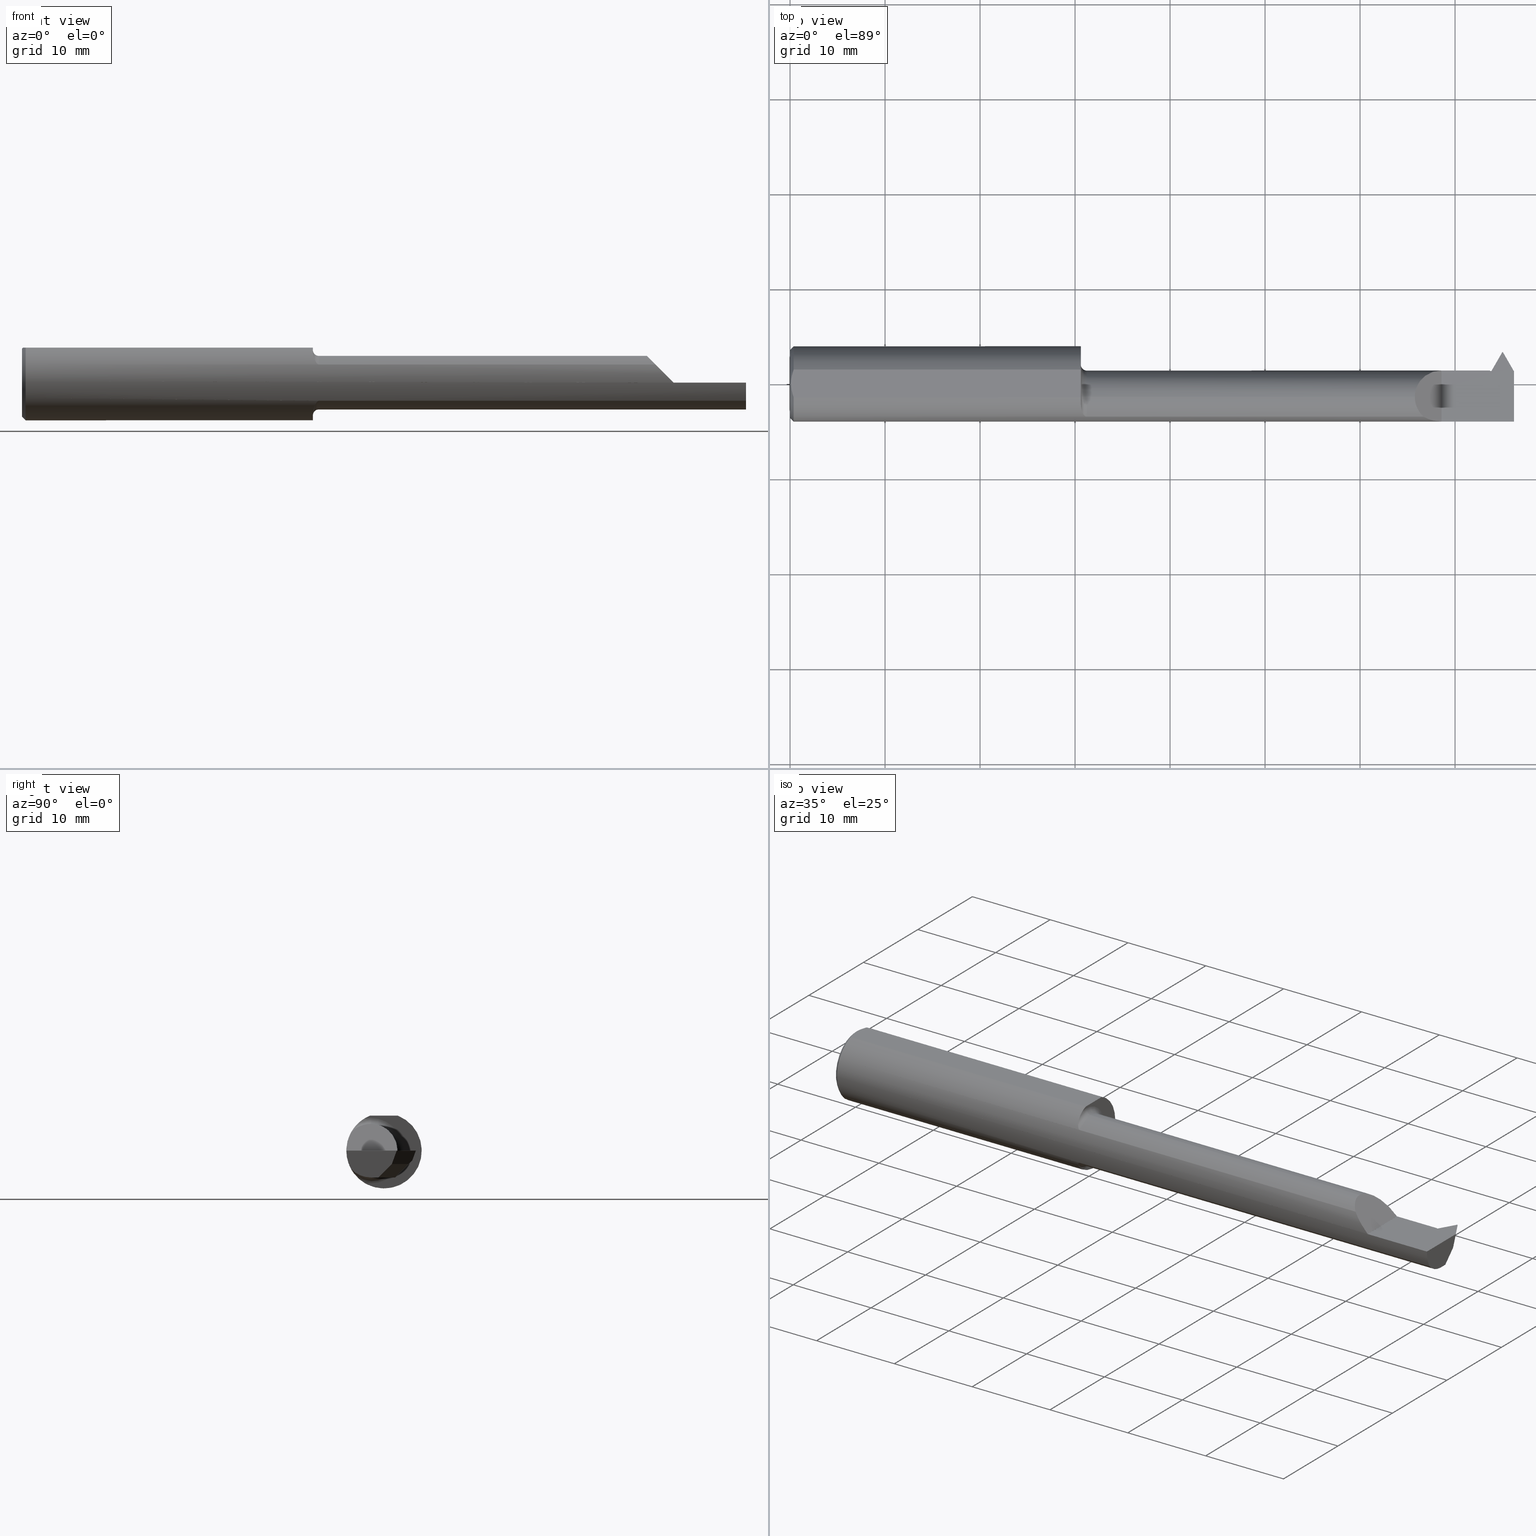
[diagram: canonical four-view strip — front | top / right | iso, engineering-drawing reading convention]
A machine part, canonical four-view strip (front | top / right | iso — engineering-drawing reading convention). The complete STEP part file that produces these views, byte-faithful:
ISO-10303-21;
HEADER;
FILE_DESCRIPTION (( 'STEP AP203' ),
    '1' );
FILE_NAME ('230322-TT2901750.STEP',
    '2025-04-22T23:06:50',
    ( '' ),
    ( '' ),
    'SwSTEP 2.0',
    'SolidWorks 2024',
    '' );
FILE_SCHEMA (( 'CONFIG_CONTROL_DESIGN' ));
ENDSEC;

DATA;
#1 = VECTOR ( 'NONE', #277, 39.37007874015748143 ) ;
#2 = CARTESIAN_POINT ( 'NONE',  ( 0.005030132703187127977, 0.01970541148932071149, 0.1450999999999999512 ) ) ;
#3 = VECTOR ( 'NONE', #340, 39.37007874015748143 ) ;
#4 = ORIENTED_EDGE ( 'NONE', *, *, #378, .F. ) ;
#5 = SECURITY_CLASSIFICATION_LEVEL ( 'unclassified' ) ;
#6 = ADVANCED_FACE ( 'NONE', ( #927 ), #420, .F. ) ;
#7 = CARTESIAN_POINT ( 'NONE',  ( 2.951499120090566475, 0.06347222395681030582, -0.1880037695421790667 ) ) ;
#8 = CARTESIAN_POINT ( 'NONE',  ( 0.004000000000002368848, 1.884449684559922719E-17, 0.1450999999999999512 ) ) ;
#9 = ORIENTED_EDGE ( 'NONE', *, *, #690, .T. ) ;
#10 = ORIENTED_EDGE ( 'NONE', *, *, #154, .T. ) ;
#11 = CARTESIAN_POINT ( 'NONE',  ( 2.635024168887416529, 0.05584141814640498219, 0.06507583111258367914 ) ) ;
#12 = DIRECTION ( 'NONE',  ( 0.000000000000000000, 0.000000000000000000, 1.000000000000000000 ) ) ;
#13 = VERTEX_POINT ( 'NONE', #409 ) ;
#14 = ORIENTED_EDGE ( 'NONE', *, *, #919, .F. ) ;
#15 = DIRECTION ( 'NONE',  ( 0.5000000000000057732, 0.000000000000000000, -0.8660254037844351549 ) ) ;
#16 = MANIFOLD_SOLID_BREP ( 'Cut-Sweep1', #162 ) ;
#17 = DIRECTION ( 'NONE',  ( 0.000000000000000000, 0.000000000000000000, 1.000000000000000000 ) ) ;
#18 = ORIENTED_EDGE ( 'NONE', *, *, #346, .F. ) ;
#19 = AXIS2_PLACEMENT_3D ( 'NONE', #233, #695, #447 ) ;
#20 = VERTEX_POINT ( 'NONE', #574 ) ;
#21 = EDGE_CURVE ( 'NONE', #589, #288, #772, .T. ) ;
#22 = CIRCLE ( 'NONE', #506, 0.1560999999999999888 ) ;
#23 = PRODUCT ( '230322-TT2901750', '230322-TT2901750', '', ( #498 ) ) ;
#24 = CARTESIAN_POINT ( 'NONE',  ( 0.01500000000000298143, 0.000000000000000000, 0.000000000000000000 ) ) ;
#25 = DIRECTION ( 'NONE',  ( 0.1779435454738421407, 0.000000000000000000, 0.9840406976462907629 ) ) ;
#26 = ORIENTED_EDGE ( 'NONE', *, *, #346, .T. ) ;
#27 = EDGE_LOOP ( 'NONE', ( #448, #812, #361, #849, #398, #468, #95, #322, #819 ) ) ;
#28 = ADVANCED_FACE ( 'NONE', ( #644 ), #273, .F. ) ;
#29 = CARTESIAN_POINT ( 'NONE',  ( 0.01500000000000243500, 0.000000000000000000, 0.000000000000000000 ) ) ;
#30 = LINE ( 'NONE', #708, #3 ) ;
#31 = ORIENTED_EDGE ( 'NONE', *, *, #842, .T. ) ;
#32 = CARTESIAN_POINT ( 'NONE',  ( 1.230000000000000426, -0.05509999999999999620, 0.000000000000000000 ) ) ;
#33 = CARTESIAN_POINT ( 'NONE',  ( 2.700000000000000178, 0.1749999999999999889, -3.979970649922725226E-17 ) ) ;
#34 = EDGE_CURVE ( 'NONE', #797, #83, #266, .T. ) ;
#35 = CARTESIAN_POINT ( 'NONE',  ( 2.912458785480009915, 0.006850319785407740260, -0.09210406005429772058 ) ) ;
#36 = LINE ( 'NONE', #773, #617 ) ;
#37 = VECTOR ( 'NONE', #344, 39.37007874015748854 ) ;
#38 = LINE ( 'NONE', #775, #803 ) ;
#39 = ADVANCED_FACE ( 'NONE', ( #278 ), #205, .T. ) ;
#40 = CARTESIAN_POINT ( 'NONE',  ( 2.954500701057454659, 0.06352100603404341184, -0.1878697418865070967 ) ) ;
#41 = DIRECTION ( 'NONE',  ( 5.463695987328525648E-15, -1.000000000000000000, -0.000000000000000000 ) ) ;
#42 = CARTESIAN_POINT ( 'NONE',  ( 2.625027139386173491, -0.1368622504537206908, 0.07507286061382660580 ) ) ;
#43 = DIRECTION ( 'NONE',  ( 0.000000000000000000, -3.537866208011151427E-15, 1.000000000000000000 ) ) ;
#44 = CARTESIAN_POINT ( 'NONE',  ( 1.205000000000000293, -0.08722028877555598747, 0.1296752301274216035 ) ) ;
#45 = CALENDAR_DATE ( 2025, 22, 4 ) ;
#46 = CARTESIAN_POINT ( 'NONE',  ( 3.000000000000000444, -0.1560999999999999333, -3.979970649922725226E-17 ) ) ;
#47 = CARTESIAN_POINT ( 'NONE',  ( 1.217545102296320625, -0.1302115092214859715, 0.08616258549502014974 ) ) ;
#48 = ADVANCED_FACE ( 'NONE', ( #788 ), #850, .F. ) ;
#49 = CIRCLE ( 'NONE', #789, 0.02499999999999999098 ) ;
#50 = CIRCLE ( 'NONE', #601, 0.1360000000000000098 ) ;
#51 = CC_DESIGN_SECURITY_CLASSIFICATION ( #931, ( #494 ) ) ;
#52 = DIRECTION ( 'NONE',  ( -4.900947565224817998E-15, 0.7071067811865432429, 0.7071067811865516806 ) ) ;
#53 = CARTESIAN_POINT ( 'NONE',  ( 2.900999999999999801, 0.05390000000000002428, 0.000000000000000000 ) ) ;
#54 = EDGE_CURVE ( 'NONE', #429, #898, #331, .T. ) ;
#55 = COORDINATED_UNIVERSAL_TIME_OFFSET ( 8, 0, .BEHIND. ) ;
#56 = CARTESIAN_POINT ( 'NONE',  ( 1.230000000000000426, -0.1368622504537204410, -0.07507286061382698050 ) ) ;
#57 = DIRECTION ( 'NONE',  ( -0.01827811026638726313, 0.9998329413882549588, -7.351876135867690758E-15 ) ) ;
#58 = ORIENTED_EDGE ( 'NONE', *, *, #341, .F. ) ;
#59 = EDGE_CURVE ( 'NONE', #383, #552, #36, .T. ) ;
#60 = CARTESIAN_POINT ( 'NONE',  ( 2.589100000000000623, -0.08664595039291338174, 0.1110000000000000014 ) ) ;
#61 = CARTESIAN_POINT ( 'NONE',  ( 1.205000000000000293, -0.05509999999999999620, 0.000000000000000000 ) ) ;
#62 = ORIENTED_EDGE ( 'NONE', *, *, #602, .F. ) ;
#63 = AXIS2_PLACEMENT_3D ( 'NONE', #711, #766, #926 ) ;
#64 = FACE_OUTER_BOUND ( 'NONE', #246, .T. ) ;
#65 = AXIS2_PLACEMENT_3D ( 'NONE', #215, #143, #127 ) ;
#66 = EDGE_CURVE ( 'NONE', #397, #316, #565, .T. ) ;
#67 = DIRECTION ( 'NONE',  ( -0.000000000000000000, 1.000000000000000000, -7.353467429283449659E-15 ) ) ;
#68 = ORIENTED_EDGE ( 'NONE', *, *, #436, .F. ) ;
#69 = PLANE ( 'NONE',  #492 ) ;
#70 = CARTESIAN_POINT ( 'NONE',  ( 2.916945011551437705, 0.1082368857768036957, -0.1110000000000011672 ) ) ;
#71 = ORIENTED_EDGE ( 'NONE', *, *, #939, .F. ) ;
#72 = DATE_AND_TIME ( #742, #765 ) ;
#73 = CARTESIAN_POINT ( 'NONE',  ( 3.000000000000000444, -0.1368622504537203854, -0.07507286061382703601 ) ) ;
#74 = DIRECTION ( 'NONE',  ( -1.000000000000000000, 0.000000000000000000, 0.000000000000000000 ) ) ;
#75 = VERTEX_POINT ( 'NONE', #777 ) ;
#76 = ORIENTED_EDGE ( 'NONE', *, *, #168, .T. ) ;
#77 = PERSON_AND_ORGANIZATION_ROLE ( 'design_supplier' ) ;
#78 = ADVANCED_FACE ( 'NONE', ( #709 ), #128, .T. ) ;
#79 =( BOUNDED_CURVE ( )  B_SPLINE_CURVE ( 3, ( #953, #683, #450, #80 ),
 .UNSPECIFIED., .F., .T. ) 
 B_SPLINE_CURVE_WITH_KNOTS ( ( 4, 4 ),
 ( 1.131590070290657835, 1.570796326794866804 ),
 .UNSPECIFIED. ) 
 CURVE ( )  GEOMETRIC_REPRESENTATION_ITEM ( )  RATIONAL_B_SPLINE_CURVE ( ( 1.000000000000000000, 0.9839893210965718895, 0.9839893210965718895, 1.000000000000000000 ) ) 
 REPRESENTATION_ITEM ( '' )  );
#80 = CARTESIAN_POINT ( 'NONE',  ( 2.900999999999999801, 0.05590000000000001218, 0.000000000000000000 ) ) ;
#81 = CIRCLE ( 'NONE', #730, 0.02499999999999999098 ) ;
#82 = PLANE ( 'NONE',  #289 ) ;
#83 = VERTEX_POINT ( 'NONE', #53 ) ;
#84 = ORIENTED_EDGE ( 'NONE', *, *, #168, .F. ) ;
#85 = SHAPE_DEFINITION_REPRESENTATION ( #827, #814 ) ;
#86 = CARTESIAN_POINT ( 'NONE',  ( 2.700000000000000178, 0.05589995495494585326, 9.999999999974760253E-05 ) ) ;
#87 = CARTESIAN_POINT ( 'NONE',  ( 3.000000000000000444, 0.05265867555372680253, 0.000000000000000000 ) ) ;
#88 = VERTEX_POINT ( 'NONE', #581 ) ;
#89 =( BOUNDED_CURVE ( )  B_SPLINE_CURVE ( 3, ( #630, #329, #912, #35 ),
 .UNSPECIFIED., .F., .T. ) 
 B_SPLINE_CURVE_WITH_KNOTS ( ( 4, 4 ),
 ( 2.948301984786027674, 3.334883322393558114 ),
 .UNSPECIFIED. ) 
 CURVE ( )  GEOMETRIC_REPRESENTATION_ITEM ( )  RATIONAL_B_SPLINE_CURVE ( ( 1.000000000000000000, 0.9875849649017660603, 0.9875849649017660603, 1.000000000000000000 ) ) 
 REPRESENTATION_ITEM ( '' )  );
#90 = ORIENTED_EDGE ( 'NONE', *, *, #924, .T. ) ;
#91 = PLANE ( 'NONE',  #557 ) ;
#92 = ADVANCED_FACE ( 'NONE', ( #796 ), #208, .T. ) ;
#93 = DIRECTION ( 'NONE',  ( 0.000000000000000000, 0.000000000000000000, -1.000000000000000000 ) ) ;
#94 = ORIENTED_EDGE ( 'NONE', *, *, #301, .F. ) ;
#95 = ORIENTED_EDGE ( 'NONE', *, *, #129, .F. ) ;
#96 = CALENDAR_DATE ( 2025, 22, 4 ) ;
#97 = CARTESIAN_POINT ( 'NONE',  ( 2.942414596679995942, 0.07650827955773054079, -0.1110000000000009451 ) ) ;
#98 = CARTESIAN_POINT ( 'NONE',  ( 2.912458785480009915, 0.04395437983970542500, -0.05500000000000004191 ) ) ;
#99 = VERTEX_POINT ( 'NONE', #144 ) ;
#100 = EDGE_CURVE ( 'NONE', #429, #391, #874, .T. ) ;
#101 = VECTOR ( 'NONE', #855, 39.37007874015748854 ) ;
#102 = ORIENTED_EDGE ( 'NONE', *, *, #616, .T. ) ;
#103 = CIRCLE ( 'NONE', #227, 0.1560999999999999888 ) ;
#104 = DIRECTION ( 'NONE',  ( -1.000000000000000000, 0.000000000000000000, 0.000000000000000000 ) ) ;
#105 = DIRECTION ( 'NONE',  ( -0.000000000000000000, 1.000000000000000000, -0.000000000000000000 ) ) ;
#106 = EDGE_LOOP ( 'NONE', ( #900, #543 ) ) ;
#107 = ORIENTED_EDGE ( 'NONE', *, *, #661, .T. ) ;
#108 = APPROVAL_ROLE ( '' ) ;
#109 = ADVANCED_FACE ( 'NONE', ( #505 ), #538, .F. ) ;
#110 = DIRECTION ( 'NONE',  ( -1.000000000000000000, -0.000000000000000000, -0.000000000000000000 ) ) ;
#111 = LINE ( 'NONE', #335, #101 ) ;
#112 = ORIENTED_EDGE ( 'NONE', *, *, #483, .T. ) ;
#113 = ORIENTED_EDGE ( 'NONE', *, *, #616, .F. ) ;
#114 = PRODUCT_DEFINITION ( 'UNKNOWN', '', #494, #624 ) ;
#115 = FACE_OUTER_BOUND ( 'NONE', #307, .T. ) ;
#116 = CARTESIAN_POINT ( 'NONE',  ( 2.900000000000000355, 0.1173411906293560097, -0.04000000000000000083 ) ) ;
#117 = CARTESIAN_POINT ( 'NONE',  ( 2.906716679003206405, 0.05390000000000003122, 0.000000000000000000 ) ) ;
#118 = VECTOR ( 'NONE', #802, 39.37007874015748143 ) ;
#119 = AXIS2_PLACEMENT_3D ( 'NONE', #33, #917, #104 ) ;
#120 = CARTESIAN_POINT ( 'NONE',  ( 2.700000000000000178, -0.1560999679692471886, 9.999999999974760253E-05 ) ) ;
#121 = CARTESIAN_POINT ( 'NONE',  ( 2.951749999999999652, 0.1319000000000034867, -3.979970649922725226E-17 ) ) ;
#122 = DIRECTION ( 'NONE',  ( 0.5000000000000034417, 0.8660254037844365982, 0.000000000000000000 ) ) ;
#123 = DIRECTION ( 'NONE',  ( 0.000000000000000000, 0.000000000000000000, -1.000000000000000000 ) ) ;
#124 = CARTESIAN_POINT ( 'NONE',  ( 0.01500000000000247836, -0.05756040305626795861, 0.1450999999999999512 ) ) ;
#125 = ADVANCED_FACE ( 'NONE', ( #525 ), #292, .F. ) ;
#126 = ORIENTED_EDGE ( 'NONE', *, *, #862, .F. ) ;
#127 = DIRECTION ( 'NONE',  ( 0.4999999999999966693, 0.000000000000000000, 0.8660254037844405950 ) ) ;
#128 = CYLINDRICAL_SURFACE ( 'NONE', #719, 0.1110000000000000014 ) ;
#129 = EDGE_CURVE ( 'NONE', #548, #797, #295, .T. ) ;
#130 = VECTOR ( 'NONE', #287, 39.37007874015748854 ) ;
#131 = VECTOR ( 'NONE', #957, 39.37007874015748143 ) ;
#132 =( NAMED_UNIT ( * ) PLANE_ANGLE_UNIT ( ) SI_UNIT ( $, .RADIAN. ) );
#133 = DIRECTION ( 'NONE',  ( -0.7071067811865462405, 0.000000000000000000, 0.7071067811865486830 ) ) ;
#134 = DIRECTION ( 'NONE',  ( 0.000000000000000000, 0.000000000000000000, -1.000000000000000000 ) ) ;
#135 = EDGE_LOOP ( 'NONE', ( #475, #761, #293 ) ) ;
#136 = ORIENTED_EDGE ( 'NONE', *, *, #280, .F. ) ;
#137 = EDGE_CURVE ( 'NONE', #829, #316, #438, .T. ) ;
#138 = PERSON_AND_ORGANIZATION ( #401, #945 ) ;
#139 = DIRECTION ( 'NONE',  ( 0.000000000000000000, 0.000000000000000000, -1.000000000000000000 ) ) ;
#140 = DIRECTION ( 'NONE',  ( -0.2521791579305292519, 0.6842534882283897169, 0.6842534882283978215 ) ) ;
#141 = ORIENTED_EDGE ( 'NONE', *, *, #636, .T. ) ;
#142 = EDGE_CURVE ( 'NONE', #429, #553, #428, .T. ) ;
#143 = DIRECTION ( 'NONE',  ( -0.7745966692414861798, -0.4472135954999554852, 0.4472135954999555407 ) ) ;
#144 = CARTESIAN_POINT ( 'NONE',  ( 0.01500000000000298143, 0.05756040305626777126, 0.1451000000000000068 ) ) ;
#145 = ORIENTED_EDGE ( 'NONE', *, *, #924, .F. ) ;
#146 = AXIS2_PLACEMENT_3D ( 'NONE', #480, #714, #785 ) ;
#147 = LINE ( 'NONE', #729, #1 ) ;
#148 = CONICAL_SURFACE ( 'NONE', #351, 0.1560999999999999888, 0.7853981633974471688 ) ;
#149 = DIRECTION ( 'NONE',  ( -4.857038552757912155E-15, -0.7071067811865432429, -0.7071067811865516806 ) ) ;
#150 = VERTEX_POINT ( 'NONE', #518 ) ;
#151 =( BOUNDED_CURVE ( )  B_SPLINE_CURVE ( 3, ( #861, #60, #359, #354 ),
 .UNSPECIFIED., .F., .F. ) 
 B_SPLINE_CURVE_WITH_KNOTS ( ( 4, 4 ),
 ( 0.000000000000000000, 0.8280247010054061496 ),
 .UNSPECIFIED. ) 
 CURVE ( )  GEOMETRIC_REPRESENTATION_ITEM ( )  RATIONAL_B_SPLINE_CURVE ( ( 1.000000000000000000, 0.9436760562907881011, 0.9436760562907881011, 1.000000000000000000 ) ) 
 REPRESENTATION_ITEM ( '' )  );
#152 = FACE_OUTER_BOUND ( 'NONE', #681, .T. ) ;
#153 = DIRECTION ( 'NONE',  ( -1.000000000000000000, -0.000000000000000000, -0.000000000000000000 ) ) ;
#154 = EDGE_CURVE ( 'NONE', #296, #288, #837, .T. ) ;
#155 = ORIENTED_EDGE ( 'NONE', *, *, #592, .F. ) ;
#156 = DATE_AND_TIME ( #508, #664 ) ;
#157 = DIRECTION ( 'NONE',  ( 0.000000000000000000, 0.000000000000000000, -1.000000000000000000 ) ) ;
#158 = CARTESIAN_POINT ( 'NONE',  ( 0.004000000000002320276, 0.009855731042683153406, 0.1450999999999999790 ) ) ;
#159 = ORIENTED_EDGE ( 'NONE', *, *, #203, .T. ) ;
#160 = EDGE_CURVE ( 'NONE', #887, #239, #514, .T. ) ;
#161 = EDGE_LOOP ( 'NONE', ( #882, #460 ) ) ;
#162 = CLOSED_SHELL ( 'NONE', ( #48, #109, #779, #225, #947, #411, #232, #310, #935, #722, #608, #39, #125, #832, #92, #78, #790, #705, #28, #6, #270, #549, #774, #297, #673, #656, #876, #579 ) ) ;
#163 = LINE ( 'NONE', #902, #473 ) ;
#164 = APPROVAL_PERSON_ORGANIZATION ( #284, #652, #677 ) ;
#165 = CARTESIAN_POINT ( 'NONE',  ( 0.000000000000000000, 0.1749999999999999889, 0.1450999999999999512 ) ) ;
#166 = ORIENTED_EDGE ( 'NONE', *, *, #431, .T. ) ;
#167 = ORIENTED_EDGE ( 'NONE', *, *, #333, .T. ) ;
#168 = EDGE_CURVE ( 'NONE', #383, #234, #299, .T. ) ;
#169 = DIRECTION ( 'NONE',  ( -0.000000000000000000, 7.353467429283449659E-15, 1.000000000000000000 ) ) ;
#170 = LINE ( 'NONE', #609, #212 ) ;
#171 = ORIENTED_EDGE ( 'NONE', *, *, #366, .T. ) ;
#172 = ORIENTED_EDGE ( 'NONE', *, *, #280, .T. ) ;
#173 = EDGE_CURVE ( 'NONE', #733, #887, #555, .T. ) ;
#174 = CARTESIAN_POINT ( 'NONE',  ( 3.000000000000000444, 0.000000000000000000, 0.000000000000000000 ) ) ;
#175 = ORIENTED_EDGE ( 'NONE', *, *, #587, .T. ) ;
#176 = VERTEX_POINT ( 'NONE', #950 ) ;
#177 = CARTESIAN_POINT ( 'NONE',  ( 2.954250000000000487, 0.1319000000000035422, 0.000000000000000000 ) ) ;
#178 = CARTESIAN_POINT ( 'NONE',  ( 2.946168426406539531, 0.04634119062935614097, -0.1110000000000007231 ) ) ;
#179 = ORIENTED_EDGE ( 'NONE', *, *, #160, .T. ) ;
#180 = AXIS2_PLACEMENT_3D ( 'NONE', #879, #355, #424 ) ;
#181 = ORIENTED_EDGE ( 'NONE', *, *, #59, .F. ) ;
#182 = VECTOR ( 'NONE', #52, 39.37007874015748854 ) ;
#183 = LINE ( 'NONE', #694, #363 ) ;
#184 = CARTESIAN_POINT ( 'NONE',  ( 0.000000000000000000, 0.000000000000000000, 0.000000000000000000 ) ) ;
#185 = ORIENTED_EDGE ( 'NONE', *, *, #466, .F. ) ;
#186 = CARTESIAN_POINT ( 'NONE',  ( 1.219135453872436159, -0.1320388560634702668, 0.08332276230954650809 ) ) ;
#187 = EDGE_CURVE ( 'NONE', #552, #741, #49, .T. ) ;
#188 = APPLICATION_CONTEXT ( 'configuration controlled 3d designs of mechanical parts and assemblies' ) ;
#189 = DIRECTION ( 'NONE',  ( 1.000000000000000000, 0.000000000000000000, 0.000000000000000000 ) ) ;
#190 = LINE ( 'NONE', #496, #852 ) ;
#191 = CARTESIAN_POINT ( 'NONE',  ( 3.000000000000000444, 0.1749999999999999889, -3.979970649922725226E-17 ) ) ;
#192 =( BOUNDED_CURVE ( )  B_SPLINE_CURVE ( 3, ( #499, #949, #517, #940 ),
 .UNSPECIFIED., .F., .F. ) 
 B_SPLINE_CURVE_WITH_KNOTS ( ( 4, 4 ),
 ( 3.320488901919218083, 4.452078972209914554 ),
 .UNSPECIFIED. ) 
 CURVE ( )  GEOMETRIC_REPRESENTATION_ITEM ( )  RATIONAL_B_SPLINE_CURVE ( ( 1.000000000000000000, 0.8961084394353016069, 0.8961084394353016069, 1.000000000000000000 ) ) 
 REPRESENTATION_ITEM ( '' )  );
#193 = CARTESIAN_POINT ( 'NONE',  ( 0.01500000000000243500, 0.000000000000000000, 0.000000000000000000 ) ) ;
#194 = CARTESIAN_POINT ( 'NONE',  ( 2.700000000000000178, 0.05590000000000001218, -3.979970649922725226E-17 ) ) ;
#195 = CARTESIAN_POINT ( 'NONE',  ( 1.228086506300958725, -0.1368622504537204410, 0.07507286061382702214 ) ) ;
#196 = AXIS2_PLACEMENT_3D ( 'NONE', #184, #840, #833 ) ;
#197 = CIRCLE ( 'NONE', #290, 0.1360000000000000098 ) ;
#198 = DIRECTION ( 'NONE',  ( 0.000000000000000000, 0.000000000000000000, -1.000000000000000000 ) ) ;
#199 = EDGE_CURVE ( 'NONE', #83, #835, #228, .T. ) ;
#200 = CARTESIAN_POINT ( 'NONE',  ( 2.944791270918812653, 0.09860446847498489931, -0.05873672215437134719 ) ) ;
#201 = DIRECTION ( 'NONE',  ( 0.000000000000000000, -0.3420201433256562784, -0.9396926207859128688 ) ) ;
#202 = APPROVAL_STATUS ( 'not_yet_approved' ) ;
#203 = EDGE_CURVE ( 'NONE', #621, #83, #655, .T. ) ;
#204 = CARTESIAN_POINT ( 'NONE',  ( 1.222325674773646842, -0.1344725336059486298, -0.07928898134248273111 ) ) ;
#205 = PLANE ( 'NONE',  #878 ) ;
#206 = DIRECTION ( 'NONE',  ( 0.7071067811865483499, 8.659560562354922997E-17, 0.7071067811865467956 ) ) ;
#207 = DIRECTION ( 'NONE',  ( 1.000000000000000000, -0.000000000000000000, -0.000000000000000000 ) ) ;
#208 = PLANE ( 'NONE',  #425 ) ;
#209 = ORIENTED_EDGE ( 'NONE', *, *, #370, .F. ) ;
#210 = EDGE_CURVE ( 'NONE', #668, #234, #586, .T. ) ;
#211 = ORIENTED_EDGE ( 'NONE', *, *, #356, .T. ) ;
#212 = VECTOR ( 'NONE', #823, 39.37007874015748143 ) ;
#213 = AXIS2_PLACEMENT_3D ( 'NONE', #749, #884, #446 ) ;
#214 = APPLICATION_PROTOCOL_DEFINITION ( 'international standard', 'config_control_design', 1994, #701 ) ;
#215 = CARTESIAN_POINT ( 'NONE',  ( 2.952999999999999847, 0.03417382318887597636, -0.1350000000000000644 ) ) ;
#216 = DIRECTION ( 'NONE',  ( 0.000000000000000000, 0.000000000000000000, -1.000000000000000000 ) ) ;
#217 = CC_DESIGN_PERSON_AND_ORGANIZATION_ASSIGNMENT ( #353, #713, ( #931 ) ) ;
#218 = VERTEX_POINT ( 'NONE', #793 ) ;
#219 = CARTESIAN_POINT ( 'NONE',  ( 2.892464930598871664, 0.04536493059887182488, -0.04719955211401765521 ) ) ;
#220 = CARTESIAN_POINT ( 'NONE',  ( 2.944432532474987596, 0.1441243724242214641, -0.01321681820513421514 ) ) ;
#221 = ORIENTED_EDGE ( 'NONE', *, *, #531, .T. ) ;
#222 = CARTESIAN_POINT ( 'NONE',  ( 2.946168426406539087, 0.1023411906293561213, -0.05500000000000004191 ) ) ;
#223 = CARTESIAN_POINT ( 'NONE',  ( 1.205000000000000293, 0.000000000000000000, 0.000000000000000000 ) ) ;
#224 = ORIENTED_EDGE ( 'NONE', *, *, #356, .F. ) ;
#225 = ADVANCED_FACE ( 'NONE', ( #727 ), #434, .T. ) ;
#226 = CARTESIAN_POINT ( 'NONE',  ( 2.700000000000000178, 0.1749999999999999889, -3.979970649922725226E-17 ) ) ;
#227 = AXIS2_PLACEMENT_3D ( 'NONE', #24, #698, #925 ) ;
#228 = LINE ( 'NONE', #941, #242 ) ;
#229 = ORIENTED_EDGE ( 'NONE', *, *, #66, .F. ) ;
#230 = APPROVAL_DATE_TIME ( #956, #247 ) ;
#231 = FACE_OUTER_BOUND ( 'NONE', #913, .T. ) ;
#232 = ADVANCED_FACE ( 'NONE', ( #254 ), #237, .T. ) ;
#233 = CARTESIAN_POINT ( 'NONE',  ( 1.205000000000000293, 0.000000000000000000, 0.000000000000000000 ) ) ;
#234 = VERTEX_POINT ( 'NONE', #620 ) ;
#235 = DATE_TIME_ROLE ( 'creation_date' ) ;
#236 = DIRECTION ( 'NONE',  ( 0.000000000000000000, -0.7071067811865432429, -0.7071067811865516806 ) ) ;
#237 = CYLINDRICAL_SURFACE ( 'NONE', #336, 0.1560999999999999888 ) ;
#238 = ORIENTED_EDGE ( 'NONE', *, *, #716, .T. ) ;
#239 = VERTEX_POINT ( 'NONE', #458 ) ;
#240 = EDGE_CURVE ( 'NONE', #686, #548, #440, .T. ) ;
#241 = CARTESIAN_POINT ( 'NONE',  ( 2.589100000000000623, 0.009875857480521079562, 0.1110000000000000014 ) ) ;
#242 = VECTOR ( 'NONE', #721, 39.37007874015748143 ) ;
#243 = CC_DESIGN_APPROVAL ( #652, ( #114 ) ) ;
#244 = DIRECTION ( 'NONE',  ( 0.7071067811865483499, 0.000000000000000000, -0.7071067811865467956 ) ) ;
#245 = ORIENTED_EDGE ( 'NONE', *, *, #592, .T. ) ;
#246 = EDGE_LOOP ( 'NONE', ( #388, #300, #768, #306 ) ) ;
#247 = APPROVAL ( #202, 'UNSPECIFIED' ) ;
#248 = DIRECTION ( 'NONE',  ( -1.000000000000000000, -0.000000000000000000, -0.000000000000000000 ) ) ;
#249 = DIRECTION ( 'NONE',  ( -1.000000000000000000, -7.100663931524167401E-15, 0.000000000000000000 ) ) ;
#250 = ORIENTED_EDGE ( 'NONE', *, *, #240, .F. ) ;
#251 = ORIENTED_EDGE ( 'NONE', *, *, #645, .T. ) ;
#252 = B_SPLINE_CURVE_WITH_KNOTS ( 'NONE', 3,
 ( #373, #613, #674, #2, #158, #8 ),
 .UNSPECIFIED., .F., .F.,
 ( 4, 2, 4 ),
 ( 0.003161694502929464183, 0.003901142131335601053, 0.004640589759741737923 ),
 .UNSPECIFIED. ) ;
#253 = DIRECTION ( 'NONE',  ( 0.000000000000000000, 0.000000000000000000, -1.000000000000000000 ) ) ;
#254 = FACE_OUTER_BOUND ( 'NONE', #605, .T. ) ;
#255 = EDGE_LOOP ( 'NONE', ( #155, #914, #682, #909 ) ) ;
#256 = ORIENTED_EDGE ( 'NONE', *, *, #327, .F. ) ;
#257 = CARTESIAN_POINT ( 'NONE',  ( 1.230000000000000426, -0.05509999999999999620, 0.1110000000000000014 ) ) ;
#258 = EDGE_CURVE ( 'NONE', #829, #526, #529, .T. ) ;
#259 = DIRECTION ( 'NONE',  ( -0.1021978390768666090, 0.1770118497048814021, 0.9788883525469466163 ) ) ;
#260 = VECTOR ( 'NONE', #249, 39.37007874015748143 ) ;
#261 = EDGE_LOOP ( 'NONE', ( #515, #610, #229, #459, #593, #179 ) ) ;
#262 = CIRCLE ( 'NONE', #916, 0.1560999999999999888 ) ;
#263 = DIRECTION ( 'NONE',  ( 0.4999999999999968359, -0.8660254037844405950, 0.000000000000000000 ) ) ;
#264 = UNCERTAINTY_MEASURE_WITH_UNIT (LENGTH_MEASURE( 1.000000000000000082E-05 ), #934, 'distance_accuracy_value', 'NONE');
#265 = CARTESIAN_POINT ( 'NONE',  ( 2.919930999995319798, -0.05510000000000081499, -0.1109999999999999876 ) ) ;
#266 = LINE ( 'NONE', #497, #897 ) ;
#267 = CARTESIAN_POINT ( 'NONE',  ( 0.004000000000002368848, 1.884449684559922719E-17, 0.1450999999999999512 ) ) ;
#268 = LINE ( 'NONE', #40, #901 ) ;
#269 = CARTESIAN_POINT ( 'NONE',  ( 1.226348515781201298, -0.1364107636049786410, 0.07590013438261594692 ) ) ;
#270 = ADVANCED_FACE ( 'NONE', ( #546 ), #82, .F. ) ;
#271 = DIRECTION ( 'NONE',  ( -1.000000000000000000, -0.000000000000000000, -0.000000000000000000 ) ) ;
#272 = DIRECTION ( 'NONE',  ( 1.000000000000000000, 0.000000000000000000, 0.000000000000000000 ) ) ;
#273 = PLANE ( 'NONE',  #454 ) ;
#274 = AXIS2_PLACEMENT_3D ( 'NONE', #419, #348, #43 ) ;
#275 = TOROIDAL_SURFACE ( 'NONE', #573, 0.1360000000000000098, 0.02500000000000000139 ) ;
#276 = PERSON_AND_ORGANIZATION ( #401, #945 ) ;
#277 = DIRECTION ( 'NONE',  ( 0.000000000000000000, -1.000000000000000000, 0.000000000000000000 ) ) ;
#278 = FACE_OUTER_BOUND ( 'NONE', #261, .T. ) ;
#279 = CARTESIAN_POINT ( 'NONE',  ( 0.000000000000000000, 0.000000000000000000, 0.000000000000000000 ) ) ;
#280 = EDGE_CURVE ( 'NONE', #668, #578, #807, .T. ) ;
#281 = CARTESIAN_POINT ( 'NONE',  ( 2.952999999999999847, 0.1340650635094651488, 0.000000000000000000 ) ) ;
#282 = CARTESIAN_POINT ( 'NONE',  ( 2.900999999999999801, 0.05390000000000002428, 0.000000000000000000 ) ) ;
#283 = ORIENTED_EDGE ( 'NONE', *, *, #416, .F. ) ;
#284 = PERSON_AND_ORGANIZATION ( #401, #945 ) ;
#285 = DIRECTION ( 'NONE',  ( 0.000000000000000000, 0.000000000000000000, -1.000000000000000000 ) ) ;
#286 = CC_DESIGN_PERSON_AND_ORGANIZATION_ASSIGNMENT ( #138, #575, ( #23 ) ) ;
#287 = DIRECTION ( 'NONE',  ( 0.1751915364254246488, 0.1751915364254258700, 0.9688218882383889952 ) ) ;
#288 = VERTEX_POINT ( 'NONE', #759 ) ;
#289 = AXIS2_PLACEMENT_3D ( 'NONE', #685, #467, #25 ) ;
#290 = AXIS2_PLACEMENT_3D ( 'NONE', #509, #726, #660 ) ;
#291 = CARTESIAN_POINT ( 'NONE',  ( 2.555000000000000604, 0.1749999999999999889, 0.1450999999999999512 ) ) ;
#292 = PLANE ( 'NONE',  #302 ) ;
#293 = ORIENTED_EDGE ( 'NONE', *, *, #203, .F. ) ;
#294 = CARTESIAN_POINT ( 'NONE',  ( 2.954303377633872518, 0.1173411906293559404, -0.04000000000000011879 ) ) ;
#295 = LINE ( 'NONE', #357, #118 ) ;
#296 = VERTEX_POINT ( 'NONE', #604 ) ;
#297 = ADVANCED_FACE ( 'NONE', ( #811 ), #535, .F. ) ;
#298 = DIRECTION ( 'NONE',  ( 0.000000000000000000, 0.000000000000000000, -1.000000000000000000 ) ) ;
#299 = LINE ( 'NONE', #70, #423 ) ;
#300 = ORIENTED_EDGE ( 'NONE', *, *, #54, .T. ) ;
#301 = EDGE_CURVE ( 'NONE', #923, #825, #928, .T. ) ;
#302 = AXIS2_PLACEMENT_3D ( 'NONE', #591, #870, #134 ) ;
#303 = CARTESIAN_POINT ( 'NONE',  ( 2.911644403619499943, 0.04536493059887160978, -0.04719955211401758582 ) ) ;
#304 = CIRCLE ( 'NONE', #720, 0.1110000000000000014 ) ;
#305 = LINE ( 'NONE', #896, #504 ) ;
#306 = ORIENTED_EDGE ( 'NONE', *, *, #700, .F. ) ;
#307 = EDGE_LOOP ( 'NONE', ( #747, #728 ) ) ;
#308 = COORDINATED_UNIVERSAL_TIME_OFFSET ( 8, 0, .BEHIND. ) ;
#309 = FACE_OUTER_BOUND ( 'NONE', #641, .T. ) ;
#310 = ADVANCED_FACE ( 'NONE', ( #885 ), #381, .F. ) ;
#311 = DIRECTION ( 'NONE',  ( 0.9947640934854947714, 0.01818544582510488866, 0.1005668328631469238 ) ) ;
#312 = ORIENTED_EDGE ( 'NONE', *, *, #129, .T. ) ;
#313 = EDGE_LOOP ( 'NONE', ( #185, #757 ) ) ;
#314 = LINE ( 'NONE', #877, #131 ) ;
#315 = DIRECTION ( 'NONE',  ( 0.000000000000000000, 0.000000000000000000, 1.000000000000000000 ) ) ;
#316 = VERTEX_POINT ( 'NONE', #87 ) ;
#317 = EDGE_LOOP ( 'NONE', ( #697, #136, #536, #166, #171, #824 ) ) ;
#318 = LINE ( 'NONE', #97, #539 ) ;
#319 = VECTOR ( 'NONE', #105, 39.37007874015748143 ) ;
#320 = DIRECTION ( 'NONE',  ( 0.1005834662396497270, 0.000000000000000000, -0.9949286237309776793 ) ) ;
#321 = ORIENTED_EDGE ( 'NONE', *, *, #341, .T. ) ;
#322 = ORIENTED_EDGE ( 'NONE', *, *, #483, .F. ) ;
#323 = DIRECTION ( 'NONE',  ( 0.000000000000000000, 7.093263402666859258E-15, -1.000000000000000000 ) ) ;
#324 = CARTESIAN_POINT ( 'NONE',  ( 1.205000000000000293, 0.04536493059886771706, -0.04719955211402639822 ) ) ;
#325 = ORIENTED_EDGE ( 'NONE', *, *, #798, .F. ) ;
#326 = EDGE_LOOP ( 'NONE', ( #18, #71, #469, #600 ) ) ;
#327 = EDGE_CURVE ( 'NONE', #13, #665, #377, .T. ) ;
#328 = PLANE ( 'NONE',  #395 ) ;
#329 = CARTESIAN_POINT ( 'NONE',  ( 2.914716234995699207, 0.02897099956963782030, -0.07389339752676293838 ) ) ;
#330 = ORIENTED_EDGE ( 'NONE', *, *, #661, .F. ) ;
#331 = LINE ( 'NONE', #632, #762 ) ;
#332 = COORDINATED_UNIVERSAL_TIME_OFFSET ( 8, 0, .BEHIND. ) ;
#333 = EDGE_CURVE ( 'NONE', #671, #621, #680, .T. ) ;
#334 = DIRECTION ( 'NONE',  ( 0.7745966692414786303, -0.4472135954999620910, 0.4472135954999621466 ) ) ;
#335 = CARTESIAN_POINT ( 'NONE',  ( 2.906716679003206405, 0.05390000000000003122, 0.000000000000000000 ) ) ;
#336 = AXIS2_PLACEMENT_3D ( 'NONE', #174, #828, #17 ) ;
#337 = AXIS2_PLACEMENT_3D ( 'NONE', #29, #907, #253 ) ;
#338 = DIRECTION ( 'NONE',  ( -1.000000000000000000, -0.000000000000000000, -0.000000000000000000 ) ) ;
#339 = CARTESIAN_POINT ( 'NONE',  ( 3.000000000000000444, -0.05510000000000080111, -0.1109999999999999737 ) ) ;
#340 = DIRECTION ( 'NONE',  ( 1.000000000000000000, -0.000000000000000000, -0.000000000000000000 ) ) ;
#341 = EDGE_CURVE ( 'NONE', #176, #75, #305, .T. ) ;
#342 = ORIENTED_EDGE ( 'NONE', *, *, #919, .T. ) ;
#343 = CARTESIAN_POINT ( 'NONE',  ( 0.005011318927235305747, -0.01959047621504288877, 0.1450999999999999512 ) ) ;
#344 = DIRECTION ( 'NONE',  ( 0.000000000000000000, 0.7071067811865474617, 0.7071067811865474617 ) ) ;
#345 = CARTESIAN_POINT ( 'NONE',  ( 1.211300778209996265, -0.1198130594394493653, 0.1003199648005457661 ) ) ;
#346 = EDGE_CURVE ( 'NONE', #808, #696, #81, .T. ) ;
#347 = DATE_AND_TIME ( #45, #523 ) ;
#348 = DIRECTION ( 'NONE',  ( 1.000000000000000000, -0.000000000000000000, -0.000000000000000000 ) ) ;
#349 = CARTESIAN_POINT ( 'NONE',  ( 1.205000000000000293, -0.08082776769509972259, 0.1335443071397166837 ) ) ;
#350 = AXIS2_PLACEMENT_3D ( 'NONE', #386, #541, #903 ) ;
#351 = AXIS2_PLACEMENT_3D ( 'NONE', #193, #783, #123 ) ;
#352 = APPROVAL_PERSON_ORGANIZATION ( #276, #623, #108 ) ;
#353 = PERSON_AND_ORGANIZATION ( #401, #945 ) ;
#354 = CARTESIAN_POINT ( 'NONE',  ( 2.625027139386173491, -0.1368622504537206908, 0.07507286061382660580 ) ) ;
#355 = DIRECTION ( 'NONE',  ( 1.000000000000000000, 0.000000000000000000, 0.000000000000000000 ) ) ;
#356 = EDGE_CURVE ( 'NONE', #99, #20, #252, .T. ) ;
#357 = CARTESIAN_POINT ( 'NONE',  ( 1.205000000000000293, 0.05589999999999999136, -3.979970649922723994E-17 ) ) ;
#358 = ORIENTED_EDGE ( 'NONE', *, *, #684, .F. ) ;
#359 = CARTESIAN_POINT ( 'NONE',  ( 2.601790491667020255, -0.1155267122845507061, 0.09830950833298011948 ) ) ;
#360 = DIRECTION ( 'NONE',  ( 0.000000000000000000, 0.000000000000000000, 1.000000000000000000 ) ) ;
#361 = ORIENTED_EDGE ( 'NONE', *, *, #258, .T. ) ;
#362 = CIRCLE ( 'NONE', #865, 0.1110000000000000014 ) ;
#363 = VECTOR ( 'NONE', #110, 39.37007874015748143 ) ;
#364 = DIRECTION ( 'NONE',  ( -1.000000000000000000, -0.000000000000000000, -0.000000000000000000 ) ) ;
#365 = CARTESIAN_POINT ( 'NONE',  ( 3.000000000000000444, -0.05509999999999999620, 0.000000000000000000 ) ) ;
#366 = EDGE_CURVE ( 'NONE', #835, #526, #170, .T. ) ;
#367 = EDGE_LOOP ( 'NONE', ( #904, #910, #224, #955, #58 ) ) ;
#368 = LINE ( 'NONE', #869, #678 ) ;
#369 = CARTESIAN_POINT ( 'NONE',  ( 1.205000000000000293, 0.2559000000000000163, 0.000000000000000000 ) ) ;
#370 = EDGE_CURVE ( 'NONE', #808, #589, #362, .T. ) ;
#371 = ORIENTED_EDGE ( 'NONE', *, *, #716, .F. ) ;
#372 = CARTESIAN_POINT ( 'NONE',  ( 2.912458785480009915, 0.04395437983970543194, -0.05500000000000003497 ) ) ;
#373 = CARTESIAN_POINT ( 'NONE',  ( 0.01500000000000298143, 0.05756040305626777126, 0.1451000000000000068 ) ) ;
#374 = EDGE_LOOP ( 'NONE', ( #181, #325, #569, #9, #715 ) ) ;
#375 = ORIENTED_EDGE ( 'NONE', *, *, #748, .F. ) ;
#376 = APPROVAL_DATE_TIME ( #156, #652 ) ;
#377 = CIRCLE ( 'NONE', #19, 0.1560999999999999888 ) ;
#378 = EDGE_CURVE ( 'NONE', #99, #665, #390, .T. ) ;
#379 = AXIS2_PLACEMENT_3D ( 'NONE', #380, #815, #15 ) ;
#380 = CARTESIAN_POINT ( 'NONE',  ( 2.912458785480009915, -0.03604562016029459748, -0.1350000000000000644 ) ) ;
#381 = PLANE ( 'NONE',  #521 ) ;
#382 = ORIENTED_EDGE ( 'NONE', *, *, #906, .F. ) ;
#383 = VERTEX_POINT ( 'NONE', #265 ) ;
#384 = CC_DESIGN_PERSON_AND_ORGANIZATION_ASSIGNMENT ( #449, #647, ( #494 ) ) ;
#385 = PLANE ( 'NONE',  #379 ) ;
#386 = CARTESIAN_POINT ( 'NONE',  ( 2.700000000000000178, -0.05509999999999999620, 0.000000000000000000 ) ) ;
#387 = VERTEX_POINT ( 'NONE', #474 ) ;
#388 = ORIENTED_EDGE ( 'NONE', *, *, #100, .F. ) ;
#389 = LINE ( 'NONE', #889, #618 ) ;
#390 = LINE ( 'NONE', #648, #455 ) ;
#391 = VERTEX_POINT ( 'NONE', #643 ) ;
#392 = ORIENTED_EDGE ( 'NONE', *, *, #690, .F. ) ;
#393 = CARTESIAN_POINT ( 'NONE',  ( 1.230000000000000426, -0.05509999999999999620, 0.000000000000000000 ) ) ;
#394 = AXIS2_PLACEMENT_3D ( 'NONE', #365, #667, #670 ) ;
#395 = AXIS2_PLACEMENT_3D ( 'NONE', #407, #334, #479 ) ;
#396 = DIRECTION ( 'NONE',  ( -0.000000000000000000, 0.000000000000000000, -1.000000000000000000 ) ) ;
#397 = VERTEX_POINT ( 'NONE', #46 ) ;
#398 = ORIENTED_EDGE ( 'NONE', *, *, #199, .F. ) ;
#399 = EDGE_CURVE ( 'NONE', #668, #671, #564, .T. ) ;
#400 = DIMENSIONAL_EXPONENTS ( 1.000000000000000000, 0.000000000000000000, 0.000000000000000000, 0.000000000000000000, 0.000000000000000000, 0.000000000000000000, 0.000000000000000000 ) ;
#401 = PERSON ( 'UNSPECIFIED', 'UNSPECIFIED', 'UNSPECIFIED', ('UNSPECIFIED'), ('UNSPECIFIED'), ('UNSPECIFIED') ) ;
#402 = LINE ( 'NONE', #706, #780 ) ;
#403 = LINE ( 'NONE', #116, #522 ) ;
#404 = ORIENTED_EDGE ( 'NONE', *, *, #736, .F. ) ;
#405 = CARTESIAN_POINT ( 'NONE',  ( 1.230000000000000426, -0.1368622504537204410, 0.07507286061382698050 ) ) ;
#406 = EDGE_CURVE ( 'NONE', #239, #898, #417, .T. ) ;
#407 = CARTESIAN_POINT ( 'NONE',  ( 2.912458785480009915, -0.03604562016029459748, -0.1350000000000000644 ) ) ;
#408 = LINE ( 'NONE', #776, #319 ) ;
#409 = CARTESIAN_POINT ( 'NONE',  ( 1.205000000000000293, -0.08082776769509972259, -0.1335443071397166837 ) ) ;
#410 = FACE_OUTER_BOUND ( 'NONE', #464, .T. ) ;
#411 = ADVANCED_FACE ( 'NONE', ( #844 ), #551, .F. ) ;
#412 = CARTESIAN_POINT ( 'NONE',  ( 2.912458785480009915, 0.03700406005429777989, -0.06195031978540768702 ) ) ;
#413 = DIRECTION ( 'NONE',  ( 1.000000000000000000, 0.000000000000000000, 0.000000000000000000 ) ) ;
#414 = LOCAL_TIME ( 16, 6, 50.00000000000000000, #533 ) ;
#415 = CARTESIAN_POINT ( 'NONE',  ( 2.700000000000000178, -0.1560999999999999888, -3.979970649922725226E-17 ) ) ;
#416 = EDGE_CURVE ( 'NONE', #176, #478, #585, .T. ) ;
#417 = LINE ( 'NONE', #918, #37 ) ;
#418 = CARTESIAN_POINT ( 'NONE',  ( 1.213324357153332533, -0.1243322553945040709, 0.09463600456597347221 ) ) ;
#419 = CARTESIAN_POINT ( 'NONE',  ( 2.912458785480009915, -0.05509999999999999620, 0.000000000000000000 ) ) ;
#420 = PLANE ( 'NONE',  #519 ) ;
#421 = APPROVAL_ROLE ( '' ) ;
#422 = LINE ( 'NONE', #718, #182 ) ;
#423 = VECTOR ( 'NONE', #57, 39.37007874015748854 ) ;
#424 = DIRECTION ( 'NONE',  ( 0.000000000000000000, 0.000000000000000000, -1.000000000000000000 ) ) ;
#425 = AXIS2_PLACEMENT_3D ( 'NONE', #369, #599, #663 ) ;
#426 = EDGE_CURVE ( 'NONE', #589, #843, #190, .T. ) ;
#427 = CARTESIAN_POINT ( 'NONE',  ( 0.01500000000000298143, 0.000000000000000000, 0.000000000000000000 ) ) ;
#428 = LINE ( 'NONE', #220, #801 ) ;
#429 = VERTEX_POINT ( 'NONE', #922 ) ;
#430 = ORIENTED_EDGE ( 'NONE', *, *, #862, .T. ) ;
#431 = EDGE_CURVE ( 'NONE', #671, #835, #111, .T. ) ;
#432 = PERSON_AND_ORGANIZATION ( #401, #945 ) ;
#433 = DIRECTION ( 'NONE',  ( -1.000000000000000000, 0.000000000000000000, 0.000000000000000000 ) ) ;
#434 = CYLINDRICAL_SURFACE ( 'NONE', #675, 0.1110000000000000014 ) ;
#435 = ORIENTED_EDGE ( 'NONE', *, *, #142, .T. ) ;
#436 = EDGE_CURVE ( 'NONE', #150, #578, #571, .T. ) ;
#437 = DIRECTION ( 'NONE',  ( 0.000000000000000000, -1.000000000000000000, 0.000000000000000000 ) ) ;
#438 = LINE ( 'NONE', #596, #746 ) ;
#439 = EDGE_LOOP ( 'NONE', ( #864, #4, #211, #90, #126 ) ) ;
#440 = CIRCLE ( 'NONE', #350, 0.1110000000000000014 ) ;
#441 = CIRCLE ( 'NONE', #693, 0.1110000000000000014 ) ;
#442 = CARTESIAN_POINT ( 'NONE',  ( 1.205000000000000293, -0.05509999999999999620, 0.000000000000000000 ) ) ;
#443 = EDGE_CURVE ( 'NONE', #478, #176, #572, .T. ) ;
#444 = DIRECTION ( 'NONE',  ( 0.000000000000000000, 0.000000000000000000, -1.000000000000000000 ) ) ;
#445 = VERTEX_POINT ( 'NONE', #178 ) ;
#446 = DIRECTION ( 'NONE',  ( 0.000000000000000000, 0.000000000000000000, 1.000000000000000000 ) ) ;
#447 = DIRECTION ( 'NONE',  ( 0.000000000000000000, 0.000000000000000000, -1.000000000000000000 ) ) ;
#448 = ORIENTED_EDGE ( 'NONE', *, *, #66, .T. ) ;
#449 = PERSON_AND_ORGANIZATION ( #401, #945 ) ;
#450 = CARTESIAN_POINT ( 'NONE',  ( 2.898037538417668646, 0.05590000000000001218, -0.01638262716674719274 ) ) ;
#451 = DIRECTION ( 'NONE',  ( 0.5000000000000057732, 0.8660254037844351549, 0.000000000000000000 ) ) ;
#452 = EDGE_LOOP ( 'NONE', ( #371, #891, #172, #330 ) ) ;
#453 = VERTEX_POINT ( 'NONE', #124 ) ;
#454 = AXIS2_PLACEMENT_3D ( 'NONE', #933, #856, #201 ) ;
#455 = VECTOR ( 'NONE', #932, 39.37007874015748143 ) ;
#456 =( GEOMETRIC_REPRESENTATION_CONTEXT ( 3 ) GLOBAL_UNCERTAINTY_ASSIGNED_CONTEXT ( ( #264 ) ) GLOBAL_UNIT_ASSIGNED_CONTEXT ( ( #934, #132, #527 ) ) REPRESENTATION_CONTEXT ( 'NONE', 'WORKASPACE' ) );
#457 = DIRECTION ( 'NONE',  ( 1.000000000000000000, 0.000000000000000000, 0.000000000000000000 ) ) ;
#458 = CARTESIAN_POINT ( 'NONE',  ( 3.000000000000000444, -0.02323256476686269903, -0.1110000000000001957 ) ) ;
#459 = ORIENTED_EDGE ( 'NONE', *, *, #748, .T. ) ;
#460 = ORIENTED_EDGE ( 'NONE', *, *, #443, .T. ) ;
#461 = CARTESIAN_POINT ( 'NONE',  ( 2.700000000000000178, 0.05589995495494585326, 9.999999999974760253E-05 ) ) ;
#462 = CARTESIAN_POINT ( 'NONE',  ( 1.230000000000000426, -0.05509999999999999620, 0.000000000000000000 ) ) ;
#463 = EDGE_LOOP ( 'NONE', ( #481, #358, #893, #875 ) ) ;
#464 = EDGE_LOOP ( 'NONE', ( #886, #283, #321, #382, #145 ) ) ;
#465 = FACE_OUTER_BOUND ( 'NONE', #938, .T. ) ;
#466 = EDGE_CURVE ( 'NONE', #387, #511, #692, .T. ) ;
#467 = DIRECTION ( 'NONE',  ( -0.9840406976462907629, -5.376499211098001928E-15, 0.1779435454738421407 ) ) ;
#468 = ORIENTED_EDGE ( 'NONE', *, *, #34, .F. ) ;
#469 = ORIENTED_EDGE ( 'NONE', *, *, #187, .T. ) ;
#470 = DATE_AND_TIME ( #96, #881 ) ;
#471 = CARTESIAN_POINT ( 'NONE',  ( 2.648128869355540260, -0.1495342103855427096, 0.05197113064445962188 ) ) ;
#472 = VECTOR ( 'NONE', #67, 39.37007874015748143 ) ;
#473 = VECTOR ( 'NONE', #534, 39.37007874015748854 ) ;
#474 = CARTESIAN_POINT ( 'NONE',  ( 2.912458785480009915, 0.006850319785407740260, -0.09210406005429772058 ) ) ;
#475 = ORIENTED_EDGE ( 'NONE', *, *, #736, .T. ) ;
#476 = PRODUCT_RELATED_PRODUCT_CATEGORY ( 'detail', '', ( #23 ) ) ;
#477 = CC_DESIGN_APPROVAL ( #623, ( #931 ) ) ;
#478 = VERTEX_POINT ( 'NONE', #485 ) ;
#479 = DIRECTION ( 'NONE',  ( 0.5000000000000057732, 0.000000000000000000, -0.8660254037844351549 ) ) ;
#480 = CARTESIAN_POINT ( 'NONE',  ( 0.000000000000000000, 0.000000000000000000, 0.000000000000000000 ) ) ;
#481 = ORIENTED_EDGE ( 'NONE', *, *, #187, .F. ) ;
#482 = DIRECTION ( 'NONE',  ( 0.000000000000000000, 0.000000000000000000, -1.000000000000000000 ) ) ;
#483 = EDGE_CURVE ( 'NONE', #923, #548, #408, .T. ) ;
#484 = CARTESIAN_POINT ( 'NONE',  ( 2.673651030168674669, -0.1560830884207283498, 0.02644896983132491095 ) ) ;
#485 = CARTESIAN_POINT ( 'NONE',  ( 0.000000000000000000, 1.819825143532955071E-17, 0.1410999999999975607 ) ) ;
#486 = DIRECTION ( 'NONE',  ( -0.000000000000000000, 1.000000000000000000, -0.000000000000000000 ) ) ;
#487 = EDGE_CURVE ( 'NONE', #150, #553, #403, .T. ) ;
#488 = CARTESIAN_POINT ( 'NONE',  ( 2.906716679003206405, 0.05390000000000003122, 0.000000000000000000 ) ) ;
#489 = FACE_OUTER_BOUND ( 'NONE', #834, .T. ) ;
#490 = VECTOR ( 'NONE', #510, 39.37007874015748854 ) ;
#491 =( BOUNDED_CURVE ( )  B_SPLINE_CURVE ( 3, ( #86, #11, #241, #540 ),
 .UNSPECIFIED., .F., .T. ) 
 B_SPLINE_CURVE_WITH_KNOTS ( ( 4, 4 ),
 ( 4.713289881407453308, 6.283185307179586232 ),
 .UNSPECIFIED. ) 
 CURVE ( )  GEOMETRIC_REPRESENTATION_ITEM ( )  RATIONAL_B_SPLINE_CURVE ( ( 1.000000000000000000, 0.8049501506993195221, 0.8049501506993195221, 1.000000000000000000 ) ) 
 REPRESENTATION_ITEM ( '' )  );
#492 = AXIS2_PLACEMENT_3D ( 'NONE', #666, #433, #590 ) ;
#493 = CARTESIAN_POINT ( 'NONE',  ( 1.223464868753674439, -0.1351961852369925332, 0.07804305429669783356 ) ) ;
#494 = PRODUCT_DEFINITION_FORMATION_WITH_SPECIFIED_SOURCE ( 'ANY', '', #23, .NOT_KNOWN. ) ;
#495 = CARTESIAN_POINT ( 'NONE',  ( 1.230000000000000426, -0.05509999999999999620, 0.000000000000000000 ) ) ;
#496 = CARTESIAN_POINT ( 'NONE',  ( 2.055500000000000327, -0.1368622504537204410, 0.07507286061382698050 ) ) ;
#497 = CARTESIAN_POINT ( 'NONE',  ( 2.900999999999999801, 0.05390000000000002428, 0.000000000000000000 ) ) ;
#498 = MECHANICAL_CONTEXT ( 'NONE', #188, 'mechanical' ) ;
#499 = CARTESIAN_POINT ( 'NONE',  ( 2.919930999995319798, -0.05510000000000081499, -0.1109999999999999876 ) ) ;
#500 = EDGE_CURVE ( 'NONE', #511, #387, #89, .T. ) ;
#501 = DIRECTION ( 'NONE',  ( 0.000000000000000000, 0.000000000000000000, -1.000000000000000000 ) ) ;
#502 = APPROVAL_STATUS ( 'not_yet_approved' ) ;
#503 = CARTESIAN_POINT ( 'NONE',  ( 1.217567871908215915, -0.1302407872897888841, -0.08611932130684253617 ) ) ;
#504 = VECTOR ( 'NONE', #244, 39.37007874015748143 ) ;
#505 = FACE_OUTER_BOUND ( 'NONE', #326, .T. ) ;
#506 = AXIS2_PLACEMENT_3D ( 'NONE', #679, #457, #298 ) ;
#507 = ORIENTED_EDGE ( 'NONE', *, *, #431, .F. ) ;
#508 = CALENDAR_DATE ( 2025, 22, 4 ) ;
#509 = CARTESIAN_POINT ( 'NONE',  ( 1.205000000000000293, -0.05509999999999999620, 0.000000000000000000 ) ) ;
#510 = DIRECTION ( 'NONE',  ( 0.09000871797897834481, -0.6219594709071004646, -0.7778591435708269719 ) ) ;
#511 = VERTEX_POINT ( 'NONE', #412 ) ;
#512 = EDGE_CURVE ( 'NONE', #829, #553, #268, .T. ) ;
#513 = CARTESIAN_POINT ( 'NONE',  ( 1.205000000000000071, -0.09362651965208497462, -0.1257978552532720007 ) ) ;
#514 = LINE ( 'NONE', #937, #472 ) ;
#515 = ORIENTED_EDGE ( 'NONE', *, *, #406, .T. ) ;
#516 = CC_DESIGN_DATE_AND_TIME_ASSIGNMENT ( #347, #929, ( #931 ) ) ;
#517 = CARTESIAN_POINT ( 'NONE',  ( 2.916039260333785688, 0.02654051824741787691, -0.08726758657088928839 ) ) ;
#518 = CARTESIAN_POINT ( 'NONE',  ( 2.951696622366127176, 0.1173411906293560514, -0.03999999999999998002 ) ) ;
#519 = AXIS2_PLACEMENT_3D ( 'NONE', #117, #651, #122 ) ;
#520 = ORIENTED_EDGE ( 'NONE', *, *, #487, .T. ) ;
#521 = AXIS2_PLACEMENT_3D ( 'NONE', #165, #396, #74 ) ;
#522 = VECTOR ( 'NONE', #699, 39.37007874015748143 ) ;
#523 = LOCAL_TIME ( 16, 6, 50.00000000000000000, #308 ) ;
#524 = PLANE ( 'NONE',  #838 ) ;
#525 = FACE_OUTER_BOUND ( 'NONE', #161, .T. ) ;
#526 = VERTEX_POINT ( 'NONE', #121 ) ;
#527 =( NAMED_UNIT ( * ) SI_UNIT ( $, .STERADIAN. ) SOLID_ANGLE_UNIT ( ) );
#528 = DIRECTION ( 'NONE',  ( 1.000000000000000000, 0.000000000000000000, 0.000000000000000000 ) ) ;
#529 = LINE ( 'NONE', #744, #260 ) ;
#530 = ORIENTED_EDGE ( 'NONE', *, *, #154, .F. ) ;
#531 = EDGE_CURVE ( 'NONE', #445, #391, #30, .T. ) ;
#532 = ORIENTED_EDGE ( 'NONE', *, *, #199, .T. ) ;
#533 = COORDINATED_UNIVERSAL_TIME_OFFSET ( 8, 0, .BEHIND. ) ;
#534 = DIRECTION ( 'NONE',  ( 0.5000000000000084377, 0.8660254037844336006, -6.343632582431993116E-15 ) ) ;
#535 = PLANE ( 'NONE',  #818 ) ;
#536 = ORIENTED_EDGE ( 'NONE', *, *, #399, .T. ) ;
#537 = ORIENTED_EDGE ( 'NONE', *, *, #784, .T. ) ;
#538 = TOROIDAL_SURFACE ( 'NONE', #180, 0.1360000000000000098, 0.02500000000000000139 ) ;
#539 = VECTOR ( 'NONE', #810, 39.37007874015748143 ) ;
#540 = CARTESIAN_POINT ( 'NONE',  ( 2.589100000000000623, -0.05509999999999999620, 0.1110000000000000014 ) ) ;
#541 = DIRECTION ( 'NONE',  ( -1.000000000000000000, -0.000000000000000000, -0.000000000000000000 ) ) ;
#542 = ORIENTED_EDGE ( 'NONE', *, *, #54, .F. ) ;
#543 = ORIENTED_EDGE ( 'NONE', *, *, #544, .F. ) ;
#544 = EDGE_CURVE ( 'NONE', #387, #511, #640, .T. ) ;
#545 = DIRECTION ( 'NONE',  ( -1.000000000000000000, 0.000000000000000000, -0.000000000000000000 ) ) ;
#546 = FACE_OUTER_BOUND ( 'NONE', #135, .T. ) ;
#547 = ORIENTED_EDGE ( 'NONE', *, *, #21, .T. ) ;
#548 = VERTEX_POINT ( 'NONE', #194 ) ;
#549 = ADVANCED_FACE ( 'NONE', ( #489 ), #781, .F. ) ;
#550 = LINE ( 'NONE', #860, #707 ) ;
#551 = PLANE ( 'NONE',  #63 ) ;
#552 = VERTEX_POINT ( 'NONE', #873 ) ;
#553 = VERTEX_POINT ( 'NONE', #294 ) ;
#554 = APPROVAL_DATE_TIME ( #470, #623 ) ;
#555 = CIRCLE ( 'NONE', #394, 0.1109999999999999876 ) ;
#556 = CARTESIAN_POINT ( 'NONE',  ( 2.700000000000000178, -0.1560999679692471886, 9.999999999974760253E-05 ) ) ;
#557 = AXIS2_PLACEMENT_3D ( 'NONE', #226, #545, #826 ) ;
#558 = AXIS2_PLACEMENT_3D ( 'NONE', #281, #734, #595 ) ;
#559 = DIRECTION ( 'NONE',  ( -0.2521791579305345254, -0.6842534882283887177, -0.6842534882283968223 ) ) ;
#560 = ORIENTED_EDGE ( 'NONE', *, *, #333, .F. ) ;
#561 = EDGE_CURVE ( 'NONE', #741, #13, #650, .T. ) ;
#562 = CARTESIAN_POINT ( 'NONE',  ( 3.000000000000000444, 0.000000000000000000, 0.000000000000000000 ) ) ;
#563 = CARTESIAN_POINT ( 'NONE',  ( 2.900999999999999801, 0.05590000000000001218, 0.000000000000000000 ) ) ;
#564 = LINE ( 'NONE', #771, #899 ) ;
#565 = LINE ( 'NONE', #191, #662 ) ;
#566 = CC_DESIGN_DATE_AND_TIME_ASSIGNMENT ( #72, #235, ( #114 ) ) ;
#567 = CARTESIAN_POINT ( 'NONE',  ( 0.008818052469299356155, -0.03886761757380391424, 0.1450999999999999512 ) ) ;
#568 = CARTESIAN_POINT ( 'NONE',  ( 2.912458785480009915, -0.03604562016029459748, -0.1350000000000000644 ) ) ;
#569 = ORIENTED_EDGE ( 'NONE', *, *, #173, .F. ) ;
#570 = CARTESIAN_POINT ( 'NONE',  ( 0.004000000000002320276, -0.009851916903761264235, 0.1450999999999999235 ) ) ;
#571 = LINE ( 'NONE', #200, #649 ) ;
#572 = CIRCLE ( 'NONE', #146, 0.1410999999999975607 ) ;
#573 = AXIS2_PLACEMENT_3D ( 'NONE', #495, #189, #839 ) ;
#574 = CARTESIAN_POINT ( 'NONE',  ( 0.004000000000002368848, 1.884449684559922719E-17, 0.1450999999999999512 ) ) ;
#575 = PERSON_AND_ORGANIZATION_ROLE ( 'design_owner' ) ;
#576 = EDGE_CURVE ( 'NONE', #665, #296, #368, .T. ) ;
#577 = CARTESIAN_POINT ( 'NONE',  ( 1.211298582722805772, -0.1198197303235669225, -0.1003181488768664781 ) ) ;
#578 = VERTEX_POINT ( 'NONE', #222 ) ;
#579 = ADVANCED_FACE ( 'NONE', ( #657 ), #69, .F. ) ;
#580 = CARTESIAN_POINT ( 'NONE',  ( 1.219174461442129376, -0.1320749731185601183, -0.08326458372355881321 ) ) ;
#581 = CARTESIAN_POINT ( 'NONE',  ( 2.589100000000000623, -0.05509999999999999620, 0.1110000000000000014 ) ) ;
#582 = EDGE_LOOP ( 'NONE', ( #691, #760, #611, #631 ) ) ;
#583 = PERSON_AND_ORGANIZATION_ROLE ( 'creator' ) ;
#584 = CARTESIAN_POINT ( 'NONE',  ( 1.228106053287835175, -0.1368622504537226892, -0.07507286061382438536 ) ) ;
#585 = CIRCLE ( 'NONE', #196, 0.1410999999999975607 ) ;
#586 = LINE ( 'NONE', #867, #490 ) ;
#587 = EDGE_CURVE ( 'NONE', #696, #741, #197, .T. ) ;
#588 = AXIS2_PLACEMENT_3D ( 'NONE', #279, #883, #888 ) ;
#589 = VERTEX_POINT ( 'NONE', #792 ) ;
#590 = DIRECTION ( 'NONE',  ( 0.000000000000000000, 0.000000000000000000, 1.000000000000000000 ) ) ;
#591 = CARTESIAN_POINT ( 'NONE',  ( 0.000000000000000000, 0.000000000000000000, 0.000000000000000000 ) ) ;
#592 = EDGE_CURVE ( 'NONE', #88, #843, #151, .T. ) ;
#593 = ORIENTED_EDGE ( 'NONE', *, *, #173, .T. ) ;
#594 =( BOUNDED_CURVE ( )  B_SPLINE_CURVE ( 3, ( #556, #484, #471, #710 ),
 .UNSPECIFIED., .F., .F. ) 
 B_SPLINE_CURVE_WITH_KNOTS ( ( 4, 4 ),
 ( 4.713029595418895212, 5.214101826882459711 ),
 .UNSPECIFIED. ) 
 CURVE ( )  GEOMETRIC_REPRESENTATION_ITEM ( )  RATIONAL_B_SPLINE_CURVE ( ( 1.000000000000000000, 0.9791864302132655684, 0.9791864302132655684, 1.000000000000000000 ) ) 
 REPRESENTATION_ITEM ( '' )  );
#595 = DIRECTION ( 'NONE',  ( 0.4999999999999976685, -0.8660254037844400399, 0.000000000000000000 ) ) ;
#596 = CARTESIAN_POINT ( 'NONE',  ( 2.952999999999999847, 0.1340650635094651488, 0.000000000000000000 ) ) ;
#597 = EDGE_LOOP ( 'NONE', ( #10, #342, #175, #841, #606, #791 ) ) ;
#598 = DIRECTION ( 'NONE',  ( 0.001253963230749299959, 0.3420198744252466172, 0.9396918819881091567 ) ) ;
#599 = DIRECTION ( 'NONE',  ( 1.000000000000000000, 0.000000000000000000, 0.000000000000000000 ) ) ;
#600 = ORIENTED_EDGE ( 'NONE', *, *, #587, .F. ) ;
#601 = AXIS2_PLACEMENT_3D ( 'NONE', #764, #921, #323 ) ;
#602 = EDGE_CURVE ( 'NONE', #383, #671, #192, .T. ) ;
#603 = CARTESIAN_POINT ( 'NONE',  ( 2.900000000000000355, 0.1173411906293560097, -0.04000000000000000083 ) ) ;
#604 = CARTESIAN_POINT ( 'NONE',  ( 1.205000000000000293, -0.05756040305626796555, 0.1450999999999999512 ) ) ;
#605 = EDGE_LOOP ( 'NONE', ( #392, #375, #868, #948, #31, #782, #547, #530, #430, #817, #141, #622, #256, #251 ) ) ;
#606 = ORIENTED_EDGE ( 'NONE', *, *, #327, .T. ) ;
#607 = CYLINDRICAL_SURFACE ( 'NONE', #213, 0.1110000000000000014 ) ;
#608 = ADVANCED_FACE ( 'NONE', ( #944 ), #799, .F. ) ;
#609 = CARTESIAN_POINT ( 'NONE',  ( 2.906716679003206405, 0.05390000000000003122, 0.000000000000000000 ) ) ;
#610 = ORIENTED_EDGE ( 'NONE', *, *, #769, .F. ) ;
#611 = ORIENTED_EDGE ( 'NONE', *, *, #753, .T. ) ;
#612 = CARTESIAN_POINT ( 'NONE',  ( 1.205000000000000293, -0.05509999999999998233, 0.1360000000000000098 ) ) ;
#613 = CARTESIAN_POINT ( 'NONE',  ( 0.01158831187866626519, 0.04830813087846593662, 0.1450999999999999235 ) ) ;
#614 = EDGE_LOOP ( 'NONE', ( #209, #26, #14, #627 ) ) ;
#615 = ORIENTED_EDGE ( 'NONE', *, *, #602, .T. ) ;
#616 = EDGE_CURVE ( 'NONE', #686, #825, #147, .T. ) ;
#617 = VECTOR ( 'NONE', #338, 39.37007874015748143 ) ;
#618 = VECTOR ( 'NONE', #248, 39.37007874015748143 ) ;
#619 = PLANE ( 'NONE',  #635 ) ;
#620 = CARTESIAN_POINT ( 'NONE',  ( 2.918938735286454200, -0.0008220178650379469541, -0.1110000000000005843 ) ) ;
#621 = VERTEX_POINT ( 'NONE', #219 ) ;
#622 = ORIENTED_EDGE ( 'NONE', *, *, #378, .T. ) ;
#623 = APPROVAL ( #894, 'UNSPECIFIED' ) ;
#624 = DESIGN_CONTEXT ( 'detailed design', #701, 'design' ) ;
#625 = FACE_OUTER_BOUND ( 'NONE', #367, .T. ) ;
#626 = CARTESIAN_POINT ( 'NONE',  ( 1.230000000000000426, -0.05509999999999998233, 0.1360000000000000098 ) ) ;
#627 = ORIENTED_EDGE ( 'NONE', *, *, #21, .F. ) ;
#628 = ORIENTED_EDGE ( 'NONE', *, *, #160, .F. ) ;
#629 = DIRECTION ( 'NONE',  ( 1.000000000000000000, 0.000000000000000000, 0.000000000000000000 ) ) ;
#630 = CARTESIAN_POINT ( 'NONE',  ( 2.912458785480009915, 0.03700406005429777989, -0.06195031978540768702 ) ) ;
#631 = ORIENTED_EDGE ( 'NONE', *, *, #258, .F. ) ;
#632 = CARTESIAN_POINT ( 'NONE',  ( 2.952999999999999847, 0.1141738231888759919, -0.05500000000000004191 ) ) ;
#633 = VECTOR ( 'NONE', #149, 39.37007874015748854 ) ;
#634 = PLANE ( 'NONE',  #119 ) ;
#635 = AXIS2_PLACEMENT_3D ( 'NONE', #822, #169, #754 ) ;
#636 = EDGE_CURVE ( 'NONE', #75, #99, #262, .T. ) ;
#637 = DIRECTION ( 'NONE',  ( 0.001253963230746999932, -0.3420198744252465617, -0.9396918819881091567 ) ) ;
#638 = ORIENTED_EDGE ( 'NONE', *, *, #512, .F. ) ;
#639 = DIRECTION ( 'NONE',  ( -1.000000000000000000, -0.000000000000000000, -0.000000000000000000 ) ) ;
#640 = LINE ( 'NONE', #568, #930 ) ;
#641 = EDGE_LOOP ( 'NONE', ( #752, #952, #659, #107, #68, #520 ) ) ;
#642 = FACE_OUTER_BOUND ( 'NONE', #27, .T. ) ;
#643 = CARTESIAN_POINT ( 'NONE',  ( 2.959831573593460163, 0.04634119062935580791, -0.1110000000000010562 ) ) ;
#644 = FACE_OUTER_BOUND ( 'NONE', #582, .T. ) ;
#645 = EDGE_CURVE ( 'NONE', #13, #218, #646, .T. ) ;
#646 = B_SPLINE_CURVE_WITH_KNOTS ( 'NONE', 3,
 ( #936, #513, #795, #577, #858, #503, #580, #204, #787, #723, #584, #56 ),
 .UNSPECIFIED., .F., .F.,
 ( 4, 2, 2, 2, 2, 4 ),
 ( 0.000000000000000000, 0.001123756246128506091, 0.001685634369192760005, 0.001966573430724889888, 0.002107042961490954072, 0.002247512492257018688 ),
 .UNSPECIFIED. ) ;
#647 = PERSON_AND_ORGANIZATION_ROLE ( 'creator' ) ;
#648 = CARTESIAN_POINT ( 'NONE',  ( 3.000000000000000444, 0.05756040305626789616, 0.1450999999999999235 ) ) ;
#649 = VECTOR ( 'NONE', #559, 39.37007874015748143 ) ;
#650 = CIRCLE ( 'NONE', #880, 0.1360000000000000098 ) ;
#651 = DIRECTION ( 'NONE',  ( 0.8522042425194477078, -0.4920203488231488231, 0.1779435454738421685 ) ) ;
#652 = APPROVAL ( #502, 'UNSPECIFIED' ) ;
#653 = LENGTH_MEASURE_WITH_UNIT ( LENGTH_MEASURE( 0.02539999999999999897 ), #813 );
#654 = CARTESIAN_POINT ( 'NONE',  ( 1.205000000000000293, 0.05756040305626788228, 0.1450999999999999512 ) ) ;
#655 = LINE ( 'NONE', #282, #130 ) ;
#656 = ADVANCED_FACE ( 'NONE', ( #64 ), #866, .F. ) ;
#657 = FACE_OUTER_BOUND ( 'NONE', #106, .T. ) ;
#658 = DIRECTION ( 'NONE',  ( 0.000000000000000000, -1.000000000000000000, 0.000000000000000000 ) ) ;
#659 = ORIENTED_EDGE ( 'NONE', *, *, #531, .F. ) ;
#660 = DIRECTION ( 'NONE',  ( 0.000000000000000000, 0.000000000000000000, -1.000000000000000000 ) ) ;
#661 = EDGE_CURVE ( 'NONE', #445, #578, #422, .T. ) ;
#662 = VECTOR ( 'NONE', #486, 39.37007874015748143 ) ;
#663 = DIRECTION ( 'NONE',  ( 0.000000000000000000, 0.000000000000000000, -1.000000000000000000 ) ) ;
#664 = LOCAL_TIME ( 16, 6, 50.00000000000000000, #55 ) ;
#665 = VERTEX_POINT ( 'NONE', #654 ) ;
#666 = CARTESIAN_POINT ( 'NONE',  ( 2.912458785480009915, -0.03604562016029459748, -0.1350000000000000644 ) ) ;
#667 = DIRECTION ( 'NONE',  ( 1.000000000000000000, -0.000000000000000000, -0.000000000000000000 ) ) ;
#668 = VERTEX_POINT ( 'NONE', #372 ) ;
#669 = DIRECTION ( 'NONE',  ( -0.7071067811865487940, 0.000000000000000000, -0.7071067811865463515 ) ) ;
#670 = DIRECTION ( 'NONE',  ( 0.000000000000000000, 0.000000000000000000, 1.000000000000000000 ) ) ;
#671 = VERTEX_POINT ( 'NONE', #303 ) ;
#672 = PERSON_AND_ORGANIZATION ( #401, #945 ) ;
#673 = ADVANCED_FACE ( 'NONE', ( #688 ), #385, .F. ) ;
#674 = CARTESIAN_POINT ( 'NONE',  ( 0.008823987512430776781, 0.03887788046871706177, 0.1450999999999999512 ) ) ;
#675 = AXIS2_PLACEMENT_3D ( 'NONE', #61, #689, #315 ) ;
#676 = ORIENTED_EDGE ( 'NONE', *, *, #798, .T. ) ;
#677 = APPROVAL_ROLE ( '' ) ;
#678 = VECTOR ( 'NONE', #437, 39.37007874015748143 ) ;
#679 = CARTESIAN_POINT ( 'NONE',  ( 3.000000000000000444, 0.000000000000000000, 0.000000000000000000 ) ) ;
#680 = LINE ( 'NONE', #324, #915 ) ;
#681 = EDGE_LOOP ( 'NONE', ( #62, #871, #786, #805, #830, #745, #312, #404, #560 ) ) ;
#682 = ORIENTED_EDGE ( 'NONE', *, *, #370, .T. ) ;
#683 = CARTESIAN_POINT ( 'NONE',  ( 2.895146223367075944, 0.05233117082158718347, -0.03237180885875238362 ) ) ;
#684 = EDGE_CURVE ( 'NONE', #218, #552, #441, .T. ) ;
#685 = CARTESIAN_POINT ( 'NONE',  ( 2.900999999999999801, 0.05390000000000002428, 0.000000000000000000 ) ) ;
#686 = VERTEX_POINT ( 'NONE', #461 ) ;
#687 = ORIENTED_EDGE ( 'NONE', *, *, #210, .T. ) ;
#688 = FACE_OUTER_BOUND ( 'NONE', #452, .T. ) ;
#689 = DIRECTION ( 'NONE',  ( -1.000000000000000000, -0.000000000000000000, -0.000000000000000000 ) ) ;
#690 = EDGE_CURVE ( 'NONE', #733, #218, #389, .T. ) ;
#691 = ORIENTED_EDGE ( 'NONE', *, *, #512, .T. ) ;
#692 = CIRCLE ( 'NONE', #274, 0.1110000000000000014 ) ;
#693 = AXIS2_PLACEMENT_3D ( 'NONE', #393, #528, #157 ) ;
#694 = CARTESIAN_POINT ( 'NONE',  ( 3.000000000000000444, -0.05510000000000080111, -0.1109999999999999737 ) ) ;
#695 = DIRECTION ( 'NONE',  ( 1.000000000000000000, 0.000000000000000000, 0.000000000000000000 ) ) ;
#696 = VERTEX_POINT ( 'NONE', #612 ) ;
#697 = ORIENTED_EDGE ( 'NONE', *, *, #436, .T. ) ;
#698 = DIRECTION ( 'NONE',  ( 1.000000000000000000, -0.000000000000000000, -0.000000000000000000 ) ) ;
#699 = DIRECTION ( 'NONE',  ( 1.000000000000000000, -0.000000000000000000, -0.000000000000000000 ) ) ;
#700 = EDGE_CURVE ( 'NONE', #391, #239, #318, .T. ) ;
#701 = APPLICATION_CONTEXT ( 'configuration controlled 3d designs of mechanical parts and assemblies' ) ;
#702 = CARTESIAN_POINT ( 'NONE',  ( 0.01500000000000247836, -0.05756040305626795861, 0.1450999999999999512 ) ) ;
#703 = CARTESIAN_POINT ( 'NONE',  ( 1.222300575926265509, -0.1344565892346399893, 0.07931625727899709044 ) ) ;
#704 = AXIS2_PLACEMENT_3D ( 'NONE', #223, #735, #444 ) ;
#705 = ADVANCED_FACE ( 'NONE', ( #465 ), #619, .F. ) ;
#706 = CARTESIAN_POINT ( 'NONE',  ( 3.000000000000000444, -0.1560999999999999333, -3.979970649922723994E-17 ) ) ;
#707 = VECTOR ( 'NONE', #206, 39.37007874015748143 ) ;
#708 = CARTESIAN_POINT ( 'NONE',  ( 2.900000000000000355, 0.04634119062935580791, -0.1110000000000010562 ) ) ;
#709 = FACE_OUTER_BOUND ( 'NONE', #374, .T. ) ;
#710 = CARTESIAN_POINT ( 'NONE',  ( 2.625027139386173491, -0.1368622504537206908, 0.07507286061382660580 ) ) ;
#711 = CARTESIAN_POINT ( 'NONE',  ( 2.906716679003206405, 0.05390000000000003122, 0.000000000000000000 ) ) ;
#712 = CARTESIAN_POINT ( 'NONE',  ( 1.208112206751180029, -0.1100485138537332930, 0.1109440811778998892 ) ) ;
#713 = PERSON_AND_ORGANIZATION_ROLE ( 'classification_officer' ) ;
#714 = DIRECTION ( 'NONE',  ( -1.000000000000000000, -0.000000000000000000, -0.000000000000000000 ) ) ;
#715 = ORIENTED_EDGE ( 'NONE', *, *, #684, .T. ) ;
#716 = EDGE_CURVE ( 'NONE', #234, #445, #163, .T. ) ;
#717 = PERSON_AND_ORGANIZATION ( #401, #945 ) ;
#718 = CARTESIAN_POINT ( 'NONE',  ( 2.946168426406539087, 0.1173411906293561624, -0.03999999999999984124 ) ) ;
#719 = AXIS2_PLACEMENT_3D ( 'NONE', #724, #731, #360 ) ;
#720 = AXIS2_PLACEMENT_3D ( 'NONE', #847, #629, #198 ) ;
#721 = DIRECTION ( 'NONE',  ( 1.000000000000000000, 1.493353916743028978E-15, -0.000000000000000000 ) ) ;
#722 = ADVANCED_FACE ( 'NONE', ( #231 ), #91, .F. ) ;
#723 = CARTESIAN_POINT ( 'NONE',  ( 1.226349781358732738, -0.1364086230541974865, -0.07590362166592534710 ) ) ;
#724 = CARTESIAN_POINT ( 'NONE',  ( 1.205000000000000293, -0.05509999999999999620, 0.000000000000000000 ) ) ;
#725 = EDGE_LOOP ( 'NONE', ( #507, #167, #159, #532 ) ) ;
#726 = DIRECTION ( 'NONE',  ( -1.000000000000000000, -0.000000000000000000, -0.000000000000000000 ) ) ;
#727 = FACE_OUTER_BOUND ( 'NONE', #255, .T. ) ;
#728 = ORIENTED_EDGE ( 'NONE', *, *, #544, .T. ) ;
#729 = CARTESIAN_POINT ( 'NONE',  ( 2.700000000000000178, 0.1749999999999999889, 9.999999999974760253E-05 ) ) ;
#730 = AXIS2_PLACEMENT_3D ( 'NONE', #626, #740, #12 ) ;
#731 = DIRECTION ( 'NONE',  ( -1.000000000000000000, -0.000000000000000000, -0.000000000000000000 ) ) ;
#732 = VECTOR ( 'NONE', #598, 39.37007874015748143 ) ;
#733 = VERTEX_POINT ( 'NONE', #73 ) ;
#734 = DIRECTION ( 'NONE',  ( -0.8522042425194510384, -0.4920203488231431055, 0.1779435454738421685 ) ) ;
#735 = DIRECTION ( 'NONE',  ( 1.000000000000000000, 0.000000000000000000, 0.000000000000000000 ) ) ;
#736 = EDGE_CURVE ( 'NONE', #621, #797, #79, .T. ) ;
#737 = ORIENTED_EDGE ( 'NONE', *, *, #700, .T. ) ;
#738 = COORDINATED_UNIVERSAL_TIME_OFFSET ( 8, 0, .BEHIND. ) ;
#739 = FACE_OUTER_BOUND ( 'NONE', #463, .T. ) ;
#740 = DIRECTION ( 'NONE',  ( 0.000000000000000000, 1.000000000000000000, -1.224646799147353207E-16 ) ) ;
#741 = VERTEX_POINT ( 'NONE', #758 ) ;
#742 = CALENDAR_DATE ( 2025, 22, 4 ) ;
#743 = LINE ( 'NONE', #7, #732 ) ;
#744 = CARTESIAN_POINT ( 'NONE',  ( 2.700000000000000622, 0.1319000000000017103, -3.979970649922725226E-17 ) ) ;
#745 = ORIENTED_EDGE ( 'NONE', *, *, #240, .T. ) ;
#746 = VECTOR ( 'NONE', #946, 39.37007874015748143 ) ;
#747 = ORIENTED_EDGE ( 'NONE', *, *, #500, .T. ) ;
#748 = EDGE_CURVE ( 'NONE', #397, #733, #22, .T. ) ;
#749 = CARTESIAN_POINT ( 'NONE',  ( 1.205000000000000293, -0.05509999999999999620, 0.000000000000000000 ) ) ;
#750 = CARTESIAN_POINT ( 'NONE',  ( 2.921917979007492061, -2.835767459621093334, 0.3721722416363272834 ) ) ;
#751 = ORIENTED_EDGE ( 'NONE', *, *, #399, .F. ) ;
#752 = ORIENTED_EDGE ( 'NONE', *, *, #142, .F. ) ;
#753 = EDGE_CURVE ( 'NONE', #150, #526, #743, .T. ) ;
#754 = DIRECTION ( 'NONE',  ( 0.000000000000000000, -1.000000000000000000, 7.353467429283449659E-15 ) ) ;
#755 = DIRECTION ( 'NONE',  ( 1.000000000000000000, 0.000000000000000000, 0.000000000000000000 ) ) ;
#756 = EDGE_LOOP ( 'NONE', ( #751, #687, #84, #615 ) ) ;
#757 = ORIENTED_EDGE ( 'NONE', *, *, #500, .F. ) ;
#758 = CARTESIAN_POINT ( 'NONE',  ( 1.205000000000000293, -0.05509999999999999620, -0.1360000000000000098 ) ) ;
#759 = CARTESIAN_POINT ( 'NONE',  ( 1.205000000000000293, -0.08082776769509972259, 0.1335443071397166837 ) ) ;
#760 = ORIENTED_EDGE ( 'NONE', *, *, #487, .F. ) ;
#761 = ORIENTED_EDGE ( 'NONE', *, *, #34, .T. ) ;
#762 = VECTOR ( 'NONE', #263, 39.37007874015747433 ) ;
#763 = VECTOR ( 'NONE', #271, 39.37007874015748143 ) ;
#764 = CARTESIAN_POINT ( 'NONE',  ( 1.205000000000000293, -0.05509999999999999620, 0.000000000000000000 ) ) ;
#765 = LOCAL_TIME ( 16, 6, 50.00000000000000000, #738 ) ;
#766 = DIRECTION ( 'NONE',  ( 1.469521030064631252E-15, -0.9840406976462907629, 0.1779435454738421407 ) ) ;
#767 = ORIENTED_EDGE ( 'NONE', *, *, #842, .F. ) ;
#768 = ORIENTED_EDGE ( 'NONE', *, *, #406, .F. ) ;
#769 = EDGE_CURVE ( 'NONE', #316, #898, #314, .T. ) ;
#770 = DIRECTION ( 'NONE',  ( -1.000000000000000000, -0.000000000000000000, -0.000000000000000000 ) ) ;
#771 = CARTESIAN_POINT ( 'NONE',  ( 2.906716679003206405, 0.05390000000000003122, 0.000000000000000000 ) ) ;
#772 = B_SPLINE_CURVE_WITH_KNOTS ( 'NONE', 3,
 ( #405, #195, #269, #493, #703, #186, #47, #418, #345, #712, #859, #920, #44, #349 ),
 .UNSPECIFIED., .F., .F.,
 ( 4, 2, 2, 2, 2, 2, 4 ),
 ( 0.000000000000000000, 0.0001427501031775190734, 0.0002855002063550378215, 0.0005710004127100758598, 0.001142000825420152804, 0.001713001238130229965, 0.002284001650840307342 ),
 .UNSPECIFIED. ) ;
#773 = CARTESIAN_POINT ( 'NONE',  ( 1.205000000000000293, -0.05509999999999998233, -0.1110000000000000014 ) ) ;
#774 = ADVANCED_FACE ( 'NONE', ( #309 ), #524, .F. ) ;
#775 = CARTESIAN_POINT ( 'NONE',  ( 1.205000000000000293, -0.05509999999999999620, 0.1110000000000000014 ) ) ;
#776 = CARTESIAN_POINT ( 'NONE',  ( 2.700000000000000178, 0.1749999999999999889, -3.979970649922725226E-17 ) ) ;
#777 = CARTESIAN_POINT ( 'NONE',  ( 0.01500000000000298143, 0.000000000000000000, -0.1561000000000005161 ) ) ;
#778 = CARTESIAN_POINT ( 'NONE',  ( 3.000000000000000444, -0.05756040305626789616, 0.1450999999999999235 ) ) ;
#779 = ADVANCED_FACE ( 'NONE', ( #806, #152 ), #607, .T. ) ;
#780 = VECTOR ( 'NONE', #639, 39.37007874015748143 ) ;
#781 = PLANE ( 'NONE',  #558 ) ;
#782 = ORIENTED_EDGE ( 'NONE', *, *, #426, .F. ) ;
#783 = DIRECTION ( 'NONE',  ( 1.000000000000000000, -0.000000000000000000, -0.000000000000000000 ) ) ;
#784 = EDGE_CURVE ( 'NONE', #686, #88, #491, .T. ) ;
#785 = DIRECTION ( 'NONE',  ( 0.000000000000000000, 0.000000000000000000, -1.000000000000000000 ) ) ;
#786 = ORIENTED_EDGE ( 'NONE', *, *, #939, .T. ) ;
#787 = CARTESIAN_POINT ( 'NONE',  ( 1.223506495904680635, -0.1352163519649314249, -0.07800775850415042623 ) ) ;
#788 = FACE_OUTER_BOUND ( 'NONE', #614, .T. ) ;
#789 = AXIS2_PLACEMENT_3D ( 'NONE', #954, #658, #216 ) ;
#790 = ADVANCED_FACE ( 'NONE', ( #739 ), #275, .F. ) ;
#791 = ORIENTED_EDGE ( 'NONE', *, *, #576, .T. ) ;
#792 = CARTESIAN_POINT ( 'NONE',  ( 1.230000000000000426, -0.1368622504537204410, 0.07507286061382698050 ) ) ;
#793 = CARTESIAN_POINT ( 'NONE',  ( 1.230000000000000426, -0.1368622504537204410, -0.07507286061382698050 ) ) ;
#794 = EDGE_LOOP ( 'NONE', ( #113, #537, #245, #767 ) ) ;
#795 = CARTESIAN_POINT ( 'NONE',  ( 1.206469879655010402, -0.1049921135599800742, -0.1164346218518445136 ) ) ;
#796 = FACE_OUTER_BOUND ( 'NONE', #597, .T. ) ;
#797 = VERTEX_POINT ( 'NONE', #563 ) ;
#798 = EDGE_CURVE ( 'NONE', #887, #383, #183, .T. ) ;
#799 = PLANE ( 'NONE',  #854 ) ;
#800 = B_SPLINE_CURVE_WITH_KNOTS ( 'NONE', 3,
 ( #267, #570, #343, #567, #831, #702 ),
 .UNSPECIFIED., .F., .F.,
 ( 4, 2, 4 ),
 ( 0.004640589759741737923, 0.005379751224090841694, 0.006118912688439944597 ),
 .UNSPECIFIED. ) ;
#801 = VECTOR ( 'NONE', #140, 39.37007874015748143 ) ;
#802 = DIRECTION ( 'NONE',  ( 1.000000000000000000, 0.000000000000000000, 0.000000000000000000 ) ) ;
#803 = VECTOR ( 'NONE', #770, 39.37007874015748143 ) ;
#804 = CC_DESIGN_APPROVAL ( #247, ( #494 ) ) ;
#805 = ORIENTED_EDGE ( 'NONE', *, *, #872, .F. ) ;
#806 = FACE_BOUND ( 'NONE', #313, .T. ) ;
#807 = LINE ( 'NONE', #98, #836 ) ;
#808 = VERTEX_POINT ( 'NONE', #257 ) ;
#809 = CALENDAR_DATE ( 2025, 22, 4 ) ;
#810 = DIRECTION ( 'NONE',  ( 0.4999999999999994449, -0.8660254037844389297, 6.371388158047670939E-15 ) ) ;
#811 = FACE_OUTER_BOUND ( 'NONE', #756, .T. ) ;
#812 = ORIENTED_EDGE ( 'NONE', *, *, #137, .F. ) ;
#813 =( LENGTH_UNIT ( ) NAMED_UNIT ( * ) SI_UNIT ( $, .METRE. ) );
#814 = ADVANCED_BREP_SHAPE_REPRESENTATION ( '230322-TT2901750', ( #16, #588 ), #456 ) ;
#815 = DIRECTION ( 'NONE',  ( 0.7745966692414786303, -0.4472135954999620910, 0.4472135954999621466 ) ) ;
#816 = DIRECTION ( 'NONE',  ( 0.000000000000000000, 0.000000000000000000, 1.000000000000000000 ) ) ;
#817 = ORIENTED_EDGE ( 'NONE', *, *, #906, .T. ) ;
#818 = AXIS2_PLACEMENT_3D ( 'NONE', #750, #311, #320 ) ;
#819 = ORIENTED_EDGE ( 'NONE', *, *, #846, .F. ) ;
#820 = CONICAL_SURFACE ( 'NONE', #337, 0.1560999999999999888, 0.7853981633974471688 ) ;
#821 = APPROVAL_PERSON_ORGANIZATION ( #672, #247, #421 ) ;
#822 = CARTESIAN_POINT ( 'NONE',  ( 3.000000000000000444, 0.1097552276659281845, -0.1110000000000011811 ) ) ;
#823 = DIRECTION ( 'NONE',  ( 0.5000000000000034417, 0.8660254037844365982, 0.000000000000000000 ) ) ;
#824 = ORIENTED_EDGE ( 'NONE', *, *, #753, .F. ) ;
#825 = VERTEX_POINT ( 'NONE', #120 ) ;
#826 = DIRECTION ( 'NONE',  ( -0.000000000000000000, 0.000000000000000000, 1.000000000000000000 ) ) ;
#827 = PRODUCT_DEFINITION_SHAPE ( 'NONE', 'NONE',  #114 ) ;
#828 = DIRECTION ( 'NONE',  ( -1.000000000000000000, -0.000000000000000000, -0.000000000000000000 ) ) ;
#829 = VERTEX_POINT ( 'NONE', #177 ) ;
#830 = ORIENTED_EDGE ( 'NONE', *, *, #784, .F. ) ;
#831 = CARTESIAN_POINT ( 'NONE',  ( 0.01161840624095796144, -0.04838974479540052165, 0.1450999999999999790 ) ) ;
#832 = ADVANCED_FACE ( 'NONE', ( #410 ), #148, .T. ) ;
#833 = DIRECTION ( 'NONE',  ( 0.000000000000000000, 0.000000000000000000, -1.000000000000000000 ) ) ;
#834 = EDGE_LOOP ( 'NONE', ( #905, #542, #435, #638, #942 ) ) ;
#835 = VERTEX_POINT ( 'NONE', #488 ) ;
#836 = VECTOR ( 'NONE', #451, 39.37007874015748854 ) ;
#837 = CIRCLE ( 'NONE', #704, 0.1560999999999999888 ) ;
#838 = AXIS2_PLACEMENT_3D ( 'NONE', #603, #895, #236 ) ;
#839 = DIRECTION ( 'NONE',  ( 0.000000000000000000, 0.000000000000000000, -1.000000000000000000 ) ) ;
#840 = DIRECTION ( 'NONE',  ( -1.000000000000000000, -0.000000000000000000, -0.000000000000000000 ) ) ;
#841 = ORIENTED_EDGE ( 'NONE', *, *, #561, .T. ) ;
#842 = EDGE_CURVE ( 'NONE', #825, #843, #594, .T. ) ;
#843 = VERTEX_POINT ( 'NONE', #42 ) ;
#844 = FACE_OUTER_BOUND ( 'NONE', #725, .T. ) ;
#845 = DIRECTION ( 'NONE',  ( 1.000000000000000000, 0.000000000000000000, 0.000000000000000000 ) ) ;
#846 = EDGE_CURVE ( 'NONE', #397, #923, #402, .T. ) ;
#847 = CARTESIAN_POINT ( 'NONE',  ( 1.230000000000000426, -0.05509999999999999620, 0.000000000000000000 ) ) ;
#848 = DIRECTION ( 'NONE',  ( 0.000000000000000000, 0.7071067811865474617, 0.7071067811865474617 ) ) ;
#849 = ORIENTED_EDGE ( 'NONE', *, *, #366, .F. ) ;
#850 = TOROIDAL_SURFACE ( 'NONE', #943, 0.1360000000000000098, 0.02500000000000000139 ) ;
#851 = CC_DESIGN_PERSON_AND_ORGANIZATION_ASSIGNMENT ( #717, #77, ( #494 ) ) ;
#852 = VECTOR ( 'NONE', #272, 39.37007874015748143 ) ;
#853 = CARTESIAN_POINT ( 'NONE',  ( 3.000000000000000444, 0.03276743523313747214, -0.05500000000000003497 ) ) ;
#854 = AXIS2_PLACEMENT_3D ( 'NONE', #291, #669, #133 ) ;
#855 = DIRECTION ( 'NONE',  ( -0.1021978390768666090, 0.1770118497048814021, 0.9788883525469466163 ) ) ;
#856 = DIRECTION ( 'NONE',  ( 6.672441499133948006E-15, -0.9396926207859128688, 0.3420201433256562784 ) ) ;
#857 = APPLICATION_PROTOCOL_DEFINITION ( 'international standard', 'config_control_design', 1994, #188 ) ;
#858 = CARTESIAN_POINT ( 'NONE',  ( 1.213312382054487104, -0.1243204233981918122, -0.09465517963088564135 ) ) ;
#859 = CARTESIAN_POINT ( 'NONE',  ( 1.206962149267435835, -0.1047579505689460316, 0.1159640188207535921 ) ) ;
#860 = CARTESIAN_POINT ( 'NONE',  ( 0.01500000000000243500, 1.911673653469017451E-17, 0.1560999999999999888 ) ) ;
#861 = CARTESIAN_POINT ( 'NONE',  ( 2.589100000000000623, -0.05509999999999999620, 0.1110000000000000014 ) ) ;
#862 = EDGE_CURVE ( 'NONE', #296, #453, #911, .T. ) ;
#863 = CARTESIAN_POINT ( 'NONE',  ( 2.959831573593460607, 0.1173411906293558016, -0.04000000000000020206 ) ) ;
#864 = ORIENTED_EDGE ( 'NONE', *, *, #576, .F. ) ;
#865 = AXIS2_PLACEMENT_3D ( 'NONE', #462, #755, #93 ) ;
#866 = PLANE ( 'NONE',  #65 ) ;
#867 = CARTESIAN_POINT ( 'NONE',  ( 3.043839276879857003, -0.8638836913307784693, -1.190395757398381216 ) ) ;
#868 = ORIENTED_EDGE ( 'NONE', *, *, #846, .T. ) ;
#869 = CARTESIAN_POINT ( 'NONE',  ( 1.205000000000000293, 0.1749999999999999889, 0.1450999999999999512 ) ) ;
#870 = DIRECTION ( 'NONE',  ( 1.000000000000000000, 0.000000000000000000, 0.000000000000000000 ) ) ;
#871 = ORIENTED_EDGE ( 'NONE', *, *, #59, .T. ) ;
#872 = EDGE_CURVE ( 'NONE', #88, #808, #38, .T. ) ;
#873 = CARTESIAN_POINT ( 'NONE',  ( 1.230000000000000426, -0.05509999999999998233, -0.1110000000000000014 ) ) ;
#874 = LINE ( 'NONE', #863, #633 ) ;
#875 = ORIENTED_EDGE ( 'NONE', *, *, #561, .F. ) ;
#876 = ADVANCED_FACE ( 'NONE', ( #115 ), #328, .F. ) ;
#877 = CARTESIAN_POINT ( 'NONE',  ( 3.000000000000000444, 0.04656774611420492344, -0.01684164052992434546 ) ) ;
#878 = AXIS2_PLACEMENT_3D ( 'NONE', #562, #413, #501 ) ;
#879 = CARTESIAN_POINT ( 'NONE',  ( 1.230000000000000426, -0.05509999999999999620, 0.000000000000000000 ) ) ;
#880 = AXIS2_PLACEMENT_3D ( 'NONE', #442, #364, #139 ) ;
#881 = LOCAL_TIME ( 16, 6, 50.00000000000000000, #332 ) ;
#882 = ORIENTED_EDGE ( 'NONE', *, *, #416, .T. ) ;
#883 = DIRECTION ( 'NONE',  ( 0.000000000000000000, 0.000000000000000000, 1.000000000000000000 ) ) ;
#884 = DIRECTION ( 'NONE',  ( -1.000000000000000000, -0.000000000000000000, -0.000000000000000000 ) ) ;
#885 = FACE_OUTER_BOUND ( 'NONE', #439, .T. ) ;
#886 = ORIENTED_EDGE ( 'NONE', *, *, #951, .F. ) ;
#887 = VERTEX_POINT ( 'NONE', #339 ) ;
#888 = DIRECTION ( 'NONE',  ( 1.000000000000000000, 0.000000000000000000, 0.000000000000000000 ) ) ;
#889 = CARTESIAN_POINT ( 'NONE',  ( 2.055500000000000327, -0.1368622504537204410, -0.07507286061382698050 ) ) ;
#890 = DIRECTION ( 'NONE',  ( -1.000000000000000000, -0.000000000000000000, -0.000000000000000000 ) ) ;
#891 = ORIENTED_EDGE ( 'NONE', *, *, #210, .F. ) ;
#892 = CC_DESIGN_PERSON_AND_ORGANIZATION_ASSIGNMENT ( #432, #583, ( #114 ) ) ;
#893 = ORIENTED_EDGE ( 'NONE', *, *, #645, .F. ) ;
#894 = APPROVAL_STATUS ( 'not_yet_approved' ) ;
#895 = DIRECTION ( 'NONE',  ( 0.000000000000000000, -0.7071067811865517916, 0.7071067811865433539 ) ) ;
#896 = CARTESIAN_POINT ( 'NONE',  ( 0.01500000000000243500, 0.000000000000000000, -0.1560999999999999888 ) ) ;
#897 = VECTOR ( 'NONE', #41, 39.37007874015748143 ) ;
#898 = VERTEX_POINT ( 'NONE', #853 ) ;
#899 = VECTOR ( 'NONE', #259, 39.37007874015748854 ) ;
#900 = ORIENTED_EDGE ( 'NONE', *, *, #466, .T. ) ;
#901 = VECTOR ( 'NONE', #637, 39.37007874015748854 ) ;
#902 = CARTESIAN_POINT ( 'NONE',  ( 2.987085403320004939, 0.1172114735355992143, -0.1110000000000012366 ) ) ;
#903 = DIRECTION ( 'NONE',  ( 0.000000000000000000, 0.000000000000000000, 1.000000000000000000 ) ) ;
#904 = ORIENTED_EDGE ( 'NONE', *, *, #443, .F. ) ;
#905 = ORIENTED_EDGE ( 'NONE', *, *, #769, .T. ) ;
#906 = EDGE_CURVE ( 'NONE', #453, #75, #103, .T. ) ;
#907 = DIRECTION ( 'NONE',  ( 1.000000000000000000, -0.000000000000000000, -0.000000000000000000 ) ) ;
#908 = CARTESIAN_POINT ( 'NONE',  ( 2.700000000000000178, 0.000000000000000000, 0.000000000000000000 ) ) ;
#909 = ORIENTED_EDGE ( 'NONE', *, *, #426, .T. ) ;
#910 = ORIENTED_EDGE ( 'NONE', *, *, #951, .T. ) ;
#911 = LINE ( 'NONE', #778, #763 ) ;
#912 = CARTESIAN_POINT ( 'NONE',  ( 2.914716234995699207, 0.01879339752676301156, -0.08407099956963777487 ) ) ;
#913 = EDGE_LOOP ( 'NONE', ( #250, #102, #94, #112 ) ) ;
#914 = ORIENTED_EDGE ( 'NONE', *, *, #872, .T. ) ;
#915 = VECTOR ( 'NONE', #890, 39.37007874015748143 ) ;
#916 = AXIS2_PLACEMENT_3D ( 'NONE', #427, #207, #285 ) ;
#917 = DIRECTION ( 'NONE',  ( -0.000000000000000000, 0.000000000000000000, -1.000000000000000000 ) ) ;
#918 = CARTESIAN_POINT ( 'NONE',  ( 3.000000000000000444, -0.04723256476686255728, -0.1350000000000000644 ) ) ;
#919 = EDGE_CURVE ( 'NONE', #288, #696, #50, .T. ) ;
#920 = CARTESIAN_POINT ( 'NONE',  ( 1.205398932116762412, -0.09332769694267495364, 0.1253468102978374243 ) ) ;
#921 = DIRECTION ( 'NONE',  ( -1.000000000000000000, -0.000000000000000000, -0.000000000000000000 ) ) ;
#922 = CARTESIAN_POINT ( 'NONE',  ( 2.959831573593460607, 0.1023411906293560658, -0.05500000000000007661 ) ) ;
#923 = VERTEX_POINT ( 'NONE', #415 ) ;
#924 = EDGE_CURVE ( 'NONE', #20, #453, #800, .T. ) ;
#925 = DIRECTION ( 'NONE',  ( 0.000000000000000000, 0.000000000000000000, -1.000000000000000000 ) ) ;
#926 = DIRECTION ( 'NONE',  ( 0.000000000000000000, -0.1779435454738421407, -0.9840406976462907629 ) ) ;
#927 = FACE_OUTER_BOUND ( 'NONE', #317, .T. ) ;
#928 = CIRCLE ( 'NONE', #958, 0.1560999999999999888 ) ;
#929 = DATE_TIME_ROLE ( 'classification_date' ) ;
#930 = VECTOR ( 'NONE', #848, 39.37007874015748854 ) ;
#931 = SECURITY_CLASSIFICATION ( '', '', #5 ) ;
#932 = DIRECTION ( 'NONE',  ( 1.000000000000000000, 0.000000000000000000, 0.000000000000000000 ) ) ;
#933 = CARTESIAN_POINT ( 'NONE',  ( 2.896128570000000568, 0.06349597133487153156, -0.1879385241571835119 ) ) ;
#934 =( CONVERSION_BASED_UNIT ( 'INCH', #653 ) LENGTH_UNIT ( ) NAMED_UNIT ( #400 ) );
#935 = ADVANCED_FACE ( 'NONE', ( #642 ), #634, .F. ) ;
#936 = CARTESIAN_POINT ( 'NONE',  ( 1.205000000000000293, -0.08082776769509972259, -0.1335443071397166837 ) ) ;
#937 = CARTESIAN_POINT ( 'NONE',  ( 3.000000000000000444, 0.1097552276659281845, -0.1110000000000011811 ) ) ;
#938 = EDGE_LOOP ( 'NONE', ( #221, #737, #628, #676, #76, #238 ) ) ;
#939 = EDGE_CURVE ( 'NONE', #552, #808, #304, .T. ) ;
#940 = CARTESIAN_POINT ( 'NONE',  ( 2.911644403619499943, 0.04536493059887160978, -0.04719955211401758582 ) ) ;
#941 = CARTESIAN_POINT ( 'NONE',  ( 2.906716679003206405, 0.05390000000000003122, 0.000000000000000000 ) ) ;
#942 = ORIENTED_EDGE ( 'NONE', *, *, #137, .T. ) ;
#943 = AXIS2_PLACEMENT_3D ( 'NONE', #32, #845, #482 ) ;
#944 = FACE_OUTER_BOUND ( 'NONE', #794, .T. ) ;
#945 = ORGANIZATION ( 'UNSPECIFIED', 'UNSPECIFIED', '' ) ;
#946 = DIRECTION ( 'NONE',  ( 0.4999999999999976685, -0.8660254037844400399, 0.000000000000000000 ) ) ;
#947 = ADVANCED_FACE ( 'NONE', ( #625 ), #820, .T. ) ;
#948 = ORIENTED_EDGE ( 'NONE', *, *, #301, .T. ) ;
#949 = CARTESIAN_POINT ( 'NONE',  ( 2.919121698429872680, -0.01083030511044209658, -0.1110000000000003484 ) ) ;
#950 = CARTESIAN_POINT ( 'NONE',  ( 0.000000000000000000, 0.000000000000000000, -0.1410999999999975607 ) ) ;
#951 = EDGE_CURVE ( 'NONE', #478, #20, #550, .T. ) ;
#952 = ORIENTED_EDGE ( 'NONE', *, *, #100, .T. ) ;
#953 = CARTESIAN_POINT ( 'NONE',  ( 2.892464930598871664, 0.04536493059887182488, -0.04719955211401765521 ) ) ;
#954 = CARTESIAN_POINT ( 'NONE',  ( 1.230000000000000426, -0.05509999999999999620, -0.1360000000000000098 ) ) ;
#955 = ORIENTED_EDGE ( 'NONE', *, *, #636, .F. ) ;
#956 = DATE_AND_TIME ( #809, #414 ) ;
#957 = DIRECTION ( 'NONE',  ( 0.000000000000000000, -0.3401001459858890574, -0.9403892229818336945 ) ) ;
#958 = AXIS2_PLACEMENT_3D ( 'NONE', #908, #153, #816 ) ;
ENDSEC;
END-ISO-10303-21;
